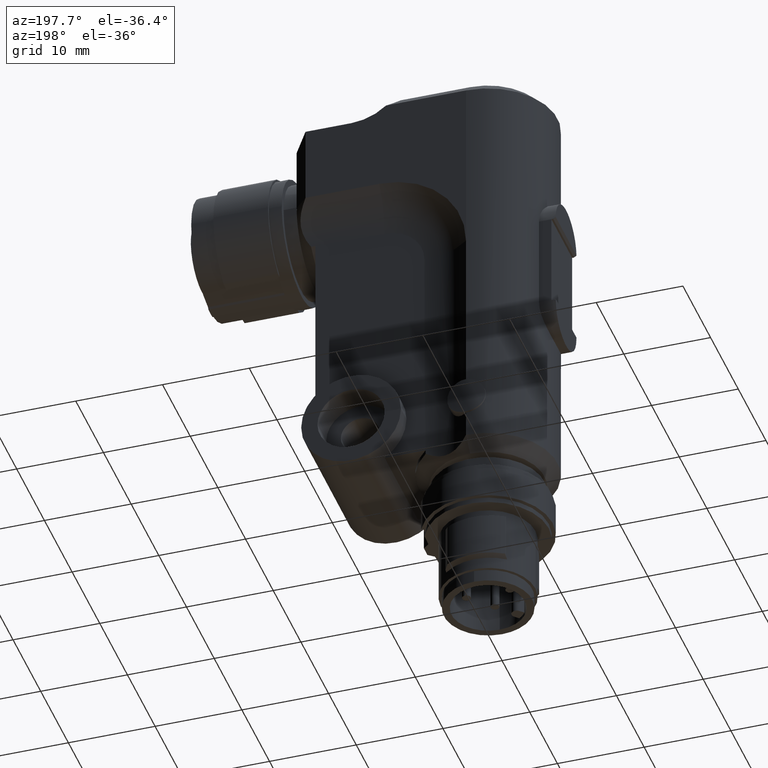
[diagram: clean part render]
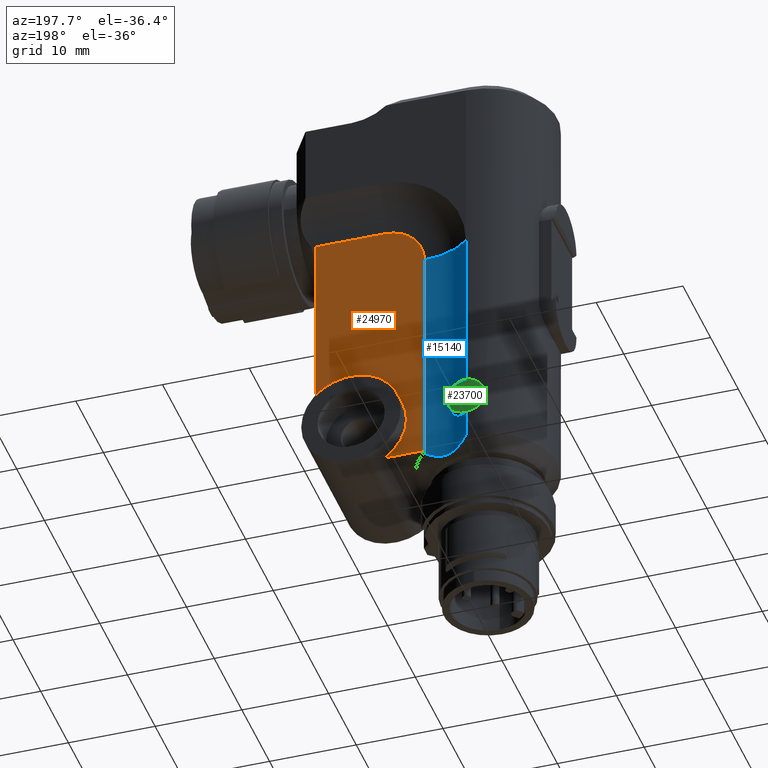
[diagram: same view with three faces highlighted in distinct colors, each labeled with its STEP entity id]
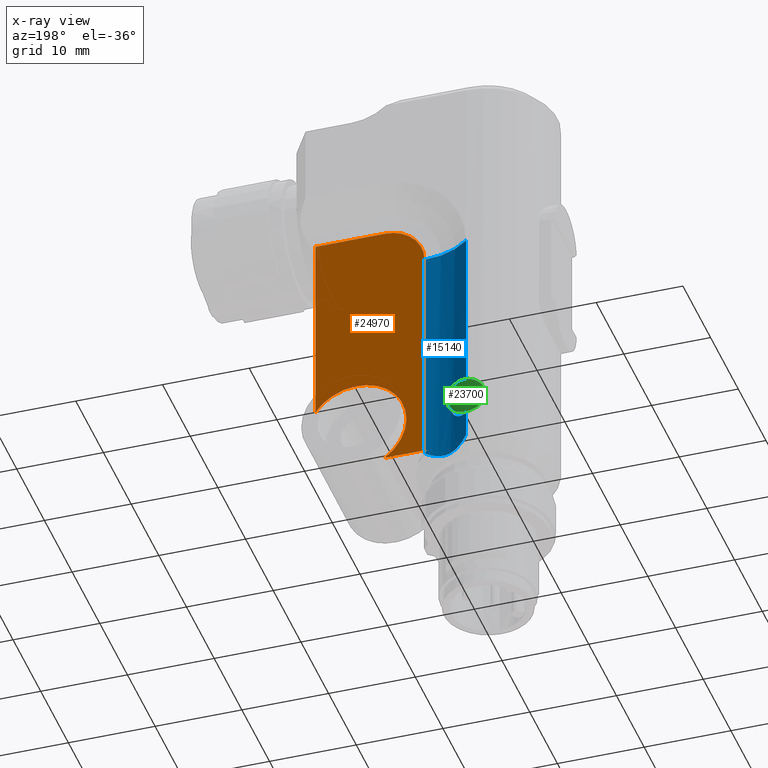
[diagram: x-ray of the same camera — body ghosted, the three highlighted faces saturated]
A machine part, auxiliary view with three faces highlighted in distinct colors.
The next image is the same camera in x-ray (body ghosted, the three faces saturated) — at least one of them is partly hidden behind the body in this view.
Their STEP definitions:

[orange] entity #24970 — the highlighted planar face has unit normal (0, -1, 0).
#10450=CARTESIAN_POINT('',(-6.001,7.49999999999997,6.75000000000001));
#10460=VERTEX_POINT('',#10450);
#10490=CARTESIAN_POINT('',(-6.001,13.25,6.75000000000001));
#10500=DIRECTION('',(1.,0.,0.));
#10510=DIRECTION('',(0.,1.,0.));
#10520=AXIS2_PLACEMENT_3D('',#10490,#10500,#10510);
#10530=CIRCLE('',#10520,5.75000000000003);
#10540=CARTESIAN_POINT('',(-6.001,10.009629650796,2.));
#10550=VERTEX_POINT('',#10540);
#10560=EDGE_CURVE('',#10460,#10550,#10530,.T.);
#11450=CARTESIAN_POINT('',(-6.001,18.,32.582010224373));
#11460=VERTEX_POINT('',#11450);
#11490=CARTESIAN_POINT('',(-6.001,18.,0.));
#11500=DIRECTION('',(0.,-1.88064205402298E-31,-1.));
#11510=VECTOR('',#11500,1.);
#11520=LINE('',#11490,#11510);
#11530=CARTESIAN_POINT('',(-6.001,18.,9.99037034920399));
#11540=VERTEX_POINT('',#11530);
#11550=EDGE_CURVE('',#11460,#11540,#11520,.T.);
#14920=CARTESIAN_POINT('',(-6.001,5.41798977562688,2.));
#14930=VERTEX_POINT('',#14920);
#14960=CARTESIAN_POINT('',(-6.001,5.41798977562688,0.));
#14970=DIRECTION('',(0.,0.,-1.));
#14980=VECTOR('',#14970,1.);
#14990=LINE('',#14960,#14980);
#15000=CARTESIAN_POINT('',(-6.001,5.41798977562688,28.));
#15010=VERTEX_POINT('',#15000);
#15020=EDGE_CURVE('',#15010,#14930,#14990,.T.);
#18250=CARTESIAN_POINT('',(-6.001,0.,2.));
#18260=DIRECTION('',(0.,-1.,0.));
#18270=VECTOR('',#18260,1.);
#18280=LINE('',#18250,#18270);
#18290=EDGE_CURVE('',#10550,#14930,#18280,.T.);
#24690=CARTESIAN_POINT('',(-6.001,15.4615034935439,27.3375668471251));
#24700=DIRECTION('',(1.,0.,0.));
#24710=DIRECTION('',(0.,-1.,0.));
#24720=AXIS2_PLACEMENT_3D('',#24690,#24700,#24710);
#24730=PLANE('',#24720);
#24740=CARTESIAN_POINT('',(-6.001,10.,28.));
#24750=DIRECTION('',(1.,-4.93038065763133E-31,-2.52970265222012E-16));
#24760=DIRECTION('',(-6.8918143462851E-31,-1.,-7.75361359933893E-16));
#24770=AXIS2_PLACEMENT_3D('',#24740,#24750,#24760);
#24780=CIRCLE('',#24770,4.58201022437255);
#24790=CARTESIAN_POINT('',(-6.001,9.99979126227064,32.5820102196179));
#24800=VERTEX_POINT('',#24790);
#24810=EDGE_CURVE('',#24800,#15010,#24780,.T.);
#24820=ORIENTED_EDGE('',*,*,#24810,.F.);
#24830=ORIENTED_EDGE('',*,*,#15020,.F.);
#24840=ORIENTED_EDGE('',*,*,#18290,.T.);
#24850=ORIENTED_EDGE('',*,*,#10560,.T.);
#24860=EDGE_CURVE('',#11540,#10460,#10530,.T.);
#24870=ORIENTED_EDGE('',*,*,#24860,.T.);
#24880=ORIENTED_EDGE('',*,*,#11550,.T.);
#24890=CARTESIAN_POINT('',(-6.001,20.,32.582010224373));
#24900=DIRECTION('',(0.,1.,0.));
#24910=VECTOR('',#24900,1.);
#24920=LINE('',#24890,#24910);
#24930=EDGE_CURVE('',#24800,#11460,#24920,.T.);
#24940=ORIENTED_EDGE('',*,*,#24930,.T.);
#24950=EDGE_LOOP('',(#24940,#24880,#24870,#24850,#24840,#24830,#24820));
#24960=FACE_OUTER_BOUND('',#24950,.T.);
#24970=ADVANCED_FACE('',(#24960),#24730,.F.);

[blue] entity #15140 — the highlighted cylindrical surface (partial cylindrical patch) has radius 8 mm, axis along (0, 0, -1).
#7190=CARTESIAN_POINT('',(-8.,8.08514479691888E-15,1.5));
#7200=VERTEX_POINT('',#7190);
#7230=CARTESIAN_POINT('',(-8.,5.32907051820075E-15,0.));
#7240=DIRECTION('',(0.,0.,-1.));
#7250=VECTOR('',#7240,1.);
#7260=LINE('',#7230,#7250);
#7270=CARTESIAN_POINT('',(-8.,2.30290563376665E-14,4.55));
#7280=VERTEX_POINT('',#7270);
#7290=EDGE_CURVE('',#7280,#7200,#7260,.T.);
#9320=CARTESIAN_POINT('',(-8.,5.60128364936802E-15,8.95000000000001));
#9330=VERTEX_POINT('',#9320);
#9360=CARTESIAN_POINT('',(-8.,4.56777472988637E-15,28.0000000000002));
#9370=VERTEX_POINT('',#9360);
#9380=EDGE_CURVE('',#9370,#9330,#7260,.T.);
#11740=CARTESIAN_POINT('',(-14.,5.29150262212919,0.));
#11750=DIRECTION('',(0.,0.,-1.));
#11760=DIRECTION('',(-1.,0.,0.));
#11770=AXIS2_PLACEMENT_3D('',#11740,#11750,#11760);
#11780=CYLINDRICAL_SURFACE('',#11770,8.);
#11790=CARTESIAN_POINT('',(-7.99999999999999,-288.297717083381,
8.95000000000001));
#11800=CARTESIAN_POINT('',(-7.99999999999999,-286.479384099412,
8.95000000000001));
#11810=CARTESIAN_POINT('',(-7.99999999999999,-284.661051115443,
8.95000000000001));
#11820=CARTESIAN_POINT('',(-7.99999999999999,-188.561812087649,
8.95000000000001));
#11830=CARTESIAN_POINT('',(-7.99999999999999,-94.2809060438244,
8.95000000000001));
#11840=CARTESIAN_POINT('',(-7.99999999999999,0.277683059985009,
8.95000000000001));
#11850=CARTESIAN_POINT('',(-7.99999999999999,0.572961063435002,
8.89422762836984));
#11860=CARTESIAN_POINT('',(-7.99999999999999,1.1146110937259,
8.66928073440923));
#11870=CARTESIAN_POINT('',(-7.99999999999999,1.36109028303667,
8.50017955418415));
#11880=CARTESIAN_POINT('',(-7.99999999999999,1.75021595875995,
8.11105387846088));
#11890=CARTESIAN_POINT('',(-7.99999999999999,1.9192888184719,
7.86458972527087));
#11900=CARTESIAN_POINT('',(-7.99999999999999,2.1442149628536,
7.32299346353924));
#11910=CARTESIAN_POINT('',(-7.99999999999999,2.19999999999999,
7.02773502201409));
#11920=CARTESIAN_POINT('',(-7.99999999999999,2.19999999999999,
6.47226497798593));
#11930=CARTESIAN_POINT('',(-7.99999999999999,2.1442149628536,
6.17700653646077));
#11940=CARTESIAN_POINT('',(-7.99999999999999,1.9192888184719,
5.63541027472915));
#11950=CARTESIAN_POINT('',(-7.99999999999999,1.75021595875995,
5.38894612153914));
#11960=CARTESIAN_POINT('',(-7.99999999999999,1.36109028303667,
4.99982044581586));
#11970=CARTESIAN_POINT('',(-7.99999999999999,1.1146110937259,
4.83071926559079));
#11980=CARTESIAN_POINT('',(-7.99999999999999,0.572961063435002,
4.60577237163017));
#11990=CARTESIAN_POINT('',(-7.99999999999999,0.277683059985009,4.55));
#12000=CARTESIAN_POINT('',(-7.99999999999999,-94.2809060438244,4.55));
#12010=CARTESIAN_POINT('',(-8.,-188.561812087649,4.55));
#12020=CARTESIAN_POINT('',(-8.,-284.661051115443,4.55));
#12030=CARTESIAN_POINT('',(-8.,-286.479384099412,4.55));
#12040=CARTESIAN_POINT('',(-8.,-288.297717083381,4.55));
#12050=B_SPLINE_CURVE_WITH_KNOTS('',3,(#11790,#11800,#11810,#11820,
#11830,#11840,#11850,#11860,#11870,#11880,#11890,#11900,#11910,#11920,
#11930,#11940,#11950,#11960,#11970,#11980,#11990,#12000,#12010,#12020,
#12030,#12040),.UNSPECIFIED.,.F.,.F.,(4,2,2,2,2,2,2,2,2,2,2,2,4),(
-43.2553612055216,-42.4369088347306,0.,0.124988305649672,
0.249976611299327,0.374988305649668,0.499999999999993,0.625011694350334,
0.750023388700659,0.87501169435033,1.,43.4369088347325,44.2553612055235)
,.UNSPECIFIED.);
#12060=DIRECTION('',(1.,-3.0839528461811E-17,-8.91609571378369E-16));
#12070=VECTOR('',#12060,1.);
#12080=SURFACE_OF_LINEAR_EXTRUSION('',#12050,#12070);
#12090=CARTESIAN_POINT('',(-8.,2.25375273998907E-14,4.55));
#12100=CARTESIAN_POINT('',(-7.96570267655543,0.0388895093440816,4.55));
#12110=CARTESIAN_POINT('',(-7.93178182886096,0.0781148522390226,
4.55109268327636));
#12120=CARTESIAN_POINT('',(-7.89827741961416,0.117627715252378,
4.55328649431283));
#12130=CARTESIAN_POINT('',(-7.86477100793111,0.157142939805336,
4.55548043646538));
#12140=CARTESIAN_POINT('',(-7.8316822941319,0.196944101056824,
4.55877531861512));
#12150=CARTESIAN_POINT('',(-7.79903614906739,0.236994998292122,
4.56319603671458));
#12160=CARTESIAN_POINT('',(-7.76639256630321,0.27704275204978,
4.56761640784482));
#12170=CARTESIAN_POINT('',(-7.73420086808112,0.31732864025757,
4.57316102986461));
#12180=CARTESIAN_POINT('',(-7.70248033262066,0.357817788359356,
4.57987140941481));
#12190=CARTESIAN_POINT('',(-7.67075830736398,0.39830883808667,
4.58658210412671));
#12200=CARTESIAN_POINT('',(-7.63953784344485,0.43896419058889,
4.59445173705619));
#12210=CARTESIAN_POINT('',(-7.60882131702823,0.479763327203773,
4.60354013100326));
#12220=CARTESIAN_POINT('',(-7.57809767997573,0.52057190850001,
4.61263062884252));
#12230=CARTESIAN_POINT('',(-7.54785951007598,0.561550458075761,
4.6229478289965));
#12240=CARTESIAN_POINT('',(-7.51817882534997,0.602580116919865,
4.63455127394426));
#12250=CARTESIAN_POINT('',(-7.4884981487231,0.64360976456797,
4.64615471572573));
#12260=CARTESIAN_POINT('',(-7.45937475541909,0.684690788193714,
4.6590443019348));
#12270=CARTESIAN_POINT('',(-7.4308735178539,0.725697407102289,
4.67328711491379));
#12280=CARTESIAN_POINT('',(-7.40237219954843,0.766704142177274,
4.68752996824081));
#12290=CARTESIAN_POINT('',(-7.37449315333942,0.807636285381603,
4.70312608321535));
#12300=CARTESIAN_POINT('',(-7.34729421259249,0.848361198969832,
4.72015221463115));
#12310=CARTESIAN_POINT('',(-7.32008537547965,0.889100930364755,
4.73718454102447));
#12320=CARTESIAN_POINT('',(-7.29355176137925,0.92963952135484,
4.75564222733577));
#12330=CARTESIAN_POINT('',(-7.26765816133198,0.969978195802697,
4.7755543436408));
#12340=CARTESIAN_POINT('',(-7.24175228894155,1.01033598887657,
4.79547589734828));
#12350=CARTESIAN_POINT('',(-7.21645393963974,1.05054742857359,
4.81688346495379));
#12360=CARTESIAN_POINT('',(-7.19183366620314,1.09044666304521,
4.83975015322497));
#12370=CARTESIAN_POINT('',(-7.16721343361652,1.130345831316,
4.86261680355573));
#12380=CARTESIAN_POINT('',(-7.14327158761174,1.16993216915795,
4.88694184207013));
#12390=CARTESIAN_POINT('',(-7.12006787253349,1.20903597542477,
4.91269123459551));
#12400=CARTESIAN_POINT('',(-7.09686417736806,1.2481397481337,
4.93844060502342));
#12410=CARTESIAN_POINT('',(-7.07439856876529,1.28676092842887,
4.96561374135676));
#12420=CARTESIAN_POINT('',(-7.05272138464216,1.32472561294509,
4.99417612445443));
#12430=CARTESIAN_POINT('',(-7.03104423908629,1.36269022991589,
5.02273845673493));
#12440=CARTESIAN_POINT('',(-7.01015503797747,1.39999907832274,
5.05268979078422));
#12450=CARTESIAN_POINT('',(-6.9900980730455,1.43647020015405,
5.08400240017153));
#12460=CARTESIAN_POINT('',(-6.97004121869337,1.47294112090952,
5.11531483692337));
#12470=CARTESIAN_POINT('',(-6.95081554963252,1.50857617678984,
5.14798898249693));
#12480=CARTESIAN_POINT('',(-6.9324650961073,1.54317627797742,
5.18201106978745));
#12490=CARTESIAN_POINT('',(-6.92329184017325,1.56047261253949,
5.19901845947937));
#12500=CARTESIAN_POINT('',(-6.914332050765,1.57751973435806,
5.21637738163294));
#12510=CARTESIAN_POINT('',(-6.90557345046783,1.59432641138482,
5.23409626275953));
#12520=CARTESIAN_POINT('',(-6.89681601335299,1.61113085640771,
5.25181279073735));
#12530=CARTESIAN_POINT('',(-6.88826447606312,1.62768592184757,
5.269878667619));
#12540=CARTESIAN_POINT('',(-6.87991968973492,1.6439751890068,
5.28827255196541));
#12550=CARTESIAN_POINT('',(-6.87157490321043,1.6602644565492,
5.30666643674449));
#12560=CARTESIAN_POINT('',(-6.8634368654282,1.67628792590976,
5.3253883423894));
#12570=CARTESIAN_POINT('',(-6.85550635556242,1.69202897108083,
5.34441707591838));
#12580=CARTESIAN_POINT('',(-6.8475744496094,1.70777278730604,
5.36344915926627));
#12590=CARTESIAN_POINT('',(-6.83985782647782,1.72321849950369,
5.38276758619952));
#12600=CARTESIAN_POINT('',(-6.83232680135606,1.73841088148078,
5.40243216553684));
#12610=CARTESIAN_POINT('',(-6.81726716138723,1.76879078317341,
5.44175503064096));
#12620=CARTESIAN_POINT('',(-6.80298241351808,1.79809355425462,
5.48238656424065));
#12630=CARTESIAN_POINT('',(-6.78949801238218,1.82615111231675,
5.52417962421982));
#12640=CARTESIAN_POINT('',(-6.76105765167009,1.88532816170478,
5.61232663861743));
#12650=CARTESIAN_POINT('',(-6.73617947728693,1.93896304704065,
5.70563874145566));
#12660=CARTESIAN_POINT('',(-6.71506642905164,1.98548645960525,
5.80271926467771));
#12670=CARTESIAN_POINT('',(-6.70978820231418,1.99711723491441,
5.826989233071));
#12680=CARTESIAN_POINT('',(-6.70474524285132,2.00830357575111,
5.85149455129776));
#12690=CARTESIAN_POINT('',(-6.69994074862329,2.01902115900796,
5.87621330040139));
#12700=CARTESIAN_POINT('',(-6.69513610304799,2.02973907988142,
5.90093282817499));
#12710=CARTESIAN_POINT('',(-6.69057338888414,2.03998033123911,
5.92585425940167));
#12720=CARTESIAN_POINT('',(-6.68623564685021,2.04976682373383,
5.95103492196161));
#12730=CARTESIAN_POINT('',(-6.67756222042097,2.06933516643135,
6.00138430245611));
#12740=CARTESIAN_POINT('',(-6.66980479259156,2.08704703618725,
6.05265465456733));
#12750=CARTESIAN_POINT('',(-6.66293138523463,2.1028627644116,
6.10456377405981));
#12760=CARTESIAN_POINT('',(-6.65606120692909,2.1186710625803,
6.15644850721725));
#12770=CARTESIAN_POINT('',(-6.65005884882605,2.13262041077172,
6.20908029798254));
#12780=CARTESIAN_POINT('',(-6.64490379480156,2.14466932302389,
6.26226114195038));
#12790=CARTESIAN_POINT('',(-6.63974916670224,2.15671723976079,
6.3154375919662));
#12800=CARTESIAN_POINT('',(-6.63544382058718,2.16686005954307,
6.36914508993118));
#12810=CARTESIAN_POINT('',(-6.63198434310159,2.17503903663659,
6.4231338602436));
#12820=CARTESIAN_POINT('',(-6.63025449873327,2.17912877490566,
6.45012989379672));
#12830=CARTESIAN_POINT('',(-6.62873688064211,2.18272611412272,
6.47718086058878));
#12840=CARTESIAN_POINT('',(-6.62742892534272,2.18583107653285,
6.50433770783071));
#12850=CARTESIAN_POINT('',(-6.62612120570052,2.18893547951503,
6.53148966216334));
#12860=CARTESIAN_POINT('',(-6.62502468919201,2.19154385686564,
6.55872289871023));
#12870=CARTESIAN_POINT('',(-6.62414324714482,2.193642528232,
6.58600400073679));
#12880=CARTESIAN_POINT('',(-6.62238037870886,2.19783983368276,
6.64056572015329));
#12890=CARTESIAN_POINT('',(-6.62147633077129,2.19999999999999,
6.69532056166732));
#12900=CARTESIAN_POINT('',(-6.62147633077129,2.19999999999999,
6.75000000000001));
#12910=CARTESIAN_POINT('',(-6.62147633077129,2.19999999999999,
6.80467943833271));
#12920=CARTESIAN_POINT('',(-6.62238037870885,2.19783983368276,
6.85943427984672));
#12930=CARTESIAN_POINT('',(-6.62414324714482,2.193642528232,
6.91399599926322));
#12940=CARTESIAN_POINT('',(-6.62502468919201,2.19154385686564,
6.94127710128979));
#12950=CARTESIAN_POINT('',(-6.62612120570052,2.18893547951503,
6.96851033783668));
#12960=CARTESIAN_POINT('',(-6.62742892534272,2.18583107653285,
6.99566229216931));
#12970=CARTESIAN_POINT('',(-6.62873688064212,2.18272611412272,
7.02281913941124));
#12980=CARTESIAN_POINT('',(-6.63025449873327,2.17912877490566,
7.04987010620329));
#12990=CARTESIAN_POINT('',(-6.63198434310159,2.17503903663659,
7.07686613975642));
#13000=CARTESIAN_POINT('',(-6.63544382058677,2.16686005954403,
7.13085491006249));
#13010=CARTESIAN_POINT('',(-6.63974916670163,2.15671723976221,
7.18456240802755));
#13020=CARTESIAN_POINT('',(-6.64490379480156,2.14466932302389,
7.23773885804964));
#13030=CARTESIAN_POINT('',(-6.65005884882605,2.13262041077172,
7.29091970201748));
#13040=CARTESIAN_POINT('',(-6.65606120692909,2.11867106258029,
7.34355149278278));
#13050=CARTESIAN_POINT('',(-6.66293138523463,2.1028627644116,
7.39543622594021));
#13060=CARTESIAN_POINT('',(-6.66980479259156,2.08704703618724,
7.44734534543268));
#13070=CARTESIAN_POINT('',(-6.67756222042098,2.06933516643134,
7.49861569754391));
#13080=CARTESIAN_POINT('',(-6.68623564685021,2.04976682373383,
7.54896507803841));
#13090=CARTESIAN_POINT('',(-6.69057338888383,2.0399803312398,
7.57414574059657));
#13100=CARTESIAN_POINT('',(-6.69513610304765,2.02973907988218,
7.59906717182328));
#13110=CARTESIAN_POINT('',(-6.69994074862329,2.01902115900796,
7.62378669959863));
#13120=CARTESIAN_POINT('',(-6.70474524285132,2.0083035757511,
7.64850544870226));
#13130=CARTESIAN_POINT('',(-6.70978820231419,1.9971172349144,
7.67301076692901));
#13140=CARTESIAN_POINT('',(-6.71506642905164,1.98548645960524,
7.69728073532231));
#13150=CARTESIAN_POINT('',(-6.73617947728693,1.93896304704065,
7.79436125854436));
#13160=CARTESIAN_POINT('',(-6.7610576516701,1.88532816170477,
7.88767336138259));
#13170=CARTESIAN_POINT('',(-6.78949801238218,1.82615111231674,
7.9758203757802));
#13180=CARTESIAN_POINT('',(-6.80298241351681,1.79809355425725,
8.01761343575544));
#13190=CARTESIAN_POINT('',(-6.81726716138581,1.76879078317627,
8.05824496935536));
#13200=CARTESIAN_POINT('',(-6.83232680135606,1.73841088148077,
8.09756783446317));
#13210=CARTESIAN_POINT('',(-6.83985782647828,1.72321849950276,
8.11723241380169));
#13220=CARTESIAN_POINT('',(-6.84757444960989,1.70777278730507,
8.13655084073491));
#13230=CARTESIAN_POINT('',(-6.85550635556242,1.69202897108082,
8.15558292408164));
#13240=CARTESIAN_POINT('',(-6.8634368654282,1.67628792590975,
8.17461165761062));
#13250=CARTESIAN_POINT('',(-6.87157490321044,1.66026445654919,
8.19333356325553));
#13260=CARTESIAN_POINT('',(-6.87991968973493,1.64397518900679,
8.21172744803461));
#13270=CARTESIAN_POINT('',(-6.88826447606312,1.62768592184756,
8.23012133238101));
#13280=CARTESIAN_POINT('',(-6.896816013353,1.61113085640769,
8.24818720926267));
#13290=CARTESIAN_POINT('',(-6.90557345046784,1.59432641138481,
8.26590373724049));
#13300=CARTESIAN_POINT('',(-6.91433205076501,1.57751973435805,
8.28362261836707));
#13310=CARTESIAN_POINT('',(-6.92329184017326,1.56047261253948,
8.30098154052065));
#13320=CARTESIAN_POINT('',(-6.93246509610731,1.54317627797741,
8.31798893021256));
#13330=CARTESIAN_POINT('',(-6.95081554963252,1.50857617678983,
8.35201101750309));
#13340=CARTESIAN_POINT('',(-6.97004121869337,1.47294112090951,
8.38468516307665));
#13350=CARTESIAN_POINT('',(-6.9900980730455,1.43647020015404,
8.41599759982849));
#13360=CARTESIAN_POINT('',(-7.01015503797748,1.39999907832273,
8.4473102092158));
#13370=CARTESIAN_POINT('',(-7.0310442390863,1.36269022991588,
8.47726154326508));
#13380=CARTESIAN_POINT('',(-7.05272138464216,1.32472561294507,
8.50582387554558));
#13390=CARTESIAN_POINT('',(-7.0743985687653,1.28676092842886,
8.53438625864326));
#13400=CARTESIAN_POINT('',(-7.09686417736807,1.24813974813369,
8.5615593949766));
#13410=CARTESIAN_POINT('',(-7.12006787253349,1.20903597542476,
8.58730876540451));
#13420=CARTESIAN_POINT('',(-7.14327158761175,1.16993216915794,
8.61305815792989));
#13430=CARTESIAN_POINT('',(-7.16721343361653,1.13034583131599,
8.63738319644428));
#13440=CARTESIAN_POINT('',(-7.19183366620315,1.0904466630452,
8.66024984677504));
#13450=CARTESIAN_POINT('',(-7.21645393963975,1.05054742857357,
8.68311653504623));
#13460=CARTESIAN_POINT('',(-7.24175228894155,1.01033598887656,
8.70452410265174));
#13470=CARTESIAN_POINT('',(-7.26765816133199,0.969978195802689,
8.72444565635921));
#13480=CARTESIAN_POINT('',(-7.29355176138901,0.929639521339645,
8.74435777267174));
#13490=CARTESIAN_POINT('',(-7.32008537548991,0.889100930349393,
8.76281545898197));
#13500=CARTESIAN_POINT('',(-7.34729421259249,0.848361198969823,
8.77984778536886));
#13510=CARTESIAN_POINT('',(-7.37449315333942,0.807636285381591,
8.79687391678467));
#13520=CARTESIAN_POINT('',(-7.40237219954843,0.766704142177264,
8.8124700317592));
#13530=CARTESIAN_POINT('',(-7.43087351785391,0.725697407102278,
8.82671288508622));
#13540=CARTESIAN_POINT('',(-7.4593747554191,0.684690788193706,
8.84095569806521));
#13550=CARTESIAN_POINT('',(-7.48849814872311,0.643609764567952,
8.85384528427428));
#13560=CARTESIAN_POINT('',(-7.51817882534998,0.602580116919855,
8.86544872605574));
#13570=CARTESIAN_POINT('',(-7.54785951007599,0.561550458075745,
8.87705217100351));
#13580=CARTESIAN_POINT('',(-7.57809767997574,0.520571908500001,
8.88736937115748));
#13590=CARTESIAN_POINT('',(-7.60882131702824,0.479763327203762,
8.89645986899675));
#13600=CARTESIAN_POINT('',(-7.63953784344486,0.438964190588883,
8.90554826294382));
#13610=CARTESIAN_POINT('',(-7.67075830736399,0.398308838086653,
8.91341789587329));
#13620=CARTESIAN_POINT('',(-7.70248033262067,0.357817788359346,
8.9201285905852));
#13630=CARTESIAN_POINT('',(-7.73420086808113,0.317328640257564,
8.92683897013539));
#13640=CARTESIAN_POINT('',(-7.76639256630322,0.277042752049768,
8.93238359215518));
#13650=CARTESIAN_POINT('',(-7.7990361490674,0.23699499829211,
8.93680396328542));
#13660=CARTESIAN_POINT('',(-7.83168229413191,0.196944101056812,
8.94122468138488));
#13670=CARTESIAN_POINT('',(-7.86477100793113,0.157142939805312,
8.94451956353463));
#13680=CARTESIAN_POINT('',(-7.89827741961417,0.117627715252363,
8.94671350568718));
#13690=CARTESIAN_POINT('',(-7.93178182886097,0.0781148522390084,
8.94890731672365));
#13700=CARTESIAN_POINT('',(-7.96570267655544,0.0388895093440661,
8.95000000000001));
#13710=CARTESIAN_POINT('',(-8.,8.2156503822269E-15,8.95000000000001));
#13720=B_SPLINE_CURVE_WITH_KNOTS('',3,(#12090,#12100,#12110,#12120,
#12130,#12140,#12150,#12160,#12170,#12180,#12190,#12200,#12210,#12220,
#12230,#12240,#12250,#12260,#12270,#12280,#12290,#12300,#12310,#12320,
#12330,#12340,#12350,#12360,#12370,#12380,#12390,#12400,#12410,#12420,
#12430,#12440,#12450,#12460,#12470,#12480,#12490,#12500,#12510,#12520,
#12530,#12540,#12550,#12560,#12570,#12580,#12590,#12600,#12610,#12620,
#12630,#12640,#12650,#12660,#12670,#12680,#12690,#12700,#12710,#12720,
#12730,#12740,#12750,#12760,#12770,#12780,#12790,#12800,#12810,#12820,
#12830,#12840,#12850,#12860,#12870,#12880,#12890,#12900,#12910,#12920,
#12930,#12940,#12950,#12960,#12970,#12980,#12990,#13000,#13010,#13020,
#13030,#13040,#13050,#13060,#13070,#13080,#13090,#13100,#13110,#13120,
#13130,#13140,#13150,#13160,#13170,#13180,#13190,#13200,#13210,#13220,
#13230,#13240,#13250,#13260,#13270,#13280,#13290,#13300,#13310,#13320,
#13330,#13340,#13350,#13360,#13370,#13380,#13390,#13400,#13410,#13420,
#13430,#13440,#13450,#13460,#13470,#13480,#13490,#13500,#13510,#13520,
#13530,#13540,#13550,#13560,#13570,#13580,#13590,#13600,#13610,#13620,
#13630,#13640,#13650,#13660,#13670,#13680,#13690,#13700,#13710),
.UNSPECIFIED.,.F.,.F.,(4,3,3,3,3,3,3,3,3,3,3,3,3,3,3,3,3,3,3,3,3,3,3,3,3
,3,3,3,3,3,3,3,3,3,3,3,3,3,3,3,3,3,3,3,3,3,3,3,3,3,3,3,3,3,4),(0.,
0.155560075269583,0.311123780085613,0.466699993431788,0.622289203733837,
0.778068868336787,0.933911159797859,1.08958833375539,1.24518275026743,
1.40135885201395,1.55801888635527,1.71476099521893,1.87124293491366,
2.02720361740525,2.10500498103816,2.18284364642119,2.26067706383786,
2.33849076070351,2.49458547783768,2.8243323858957,2.90652531730662,
2.98857635897961,3.15273544417975,3.31691616019279,3.48118164430166,
3.56323141159444,3.64534173553406,3.80952998533529,3.97371823513652,
4.05582855907614,4.13787832636891,4.30214381047779,4.46632452649084,
4.63048361169098,4.71253465336397,4.79472758477489,5.12447449283291,
5.28056920996708,5.35838290683273,5.43621632424941,5.51405498963245,
5.59185635326536,5.74781703575695,5.90429897545168,6.06104108431534,
6.21770111865667,6.37387722040318,6.52947163691523,6.68514881087276,
6.84099110233382,6.99677076693679,7.15235997723884,7.30793619058501,
7.46349989540104,7.6190599706706),.UNSPECIFIED.);
#13730=SURFACE_CURVE('',#13720,(#11780,#12080),.CURVE_3D.);
#13740=EDGE_CURVE('',#7280,#9330,#13730,.T.);
#13750=ORIENTED_EDGE('',*,*,#13740,.T.);
#13760=ORIENTED_EDGE('',*,*,#7290,.F.);
#13770=CARTESIAN_POINT('',(7.61693287089118E-16,7.105427357601E-15,1.5))
;
#13780=DIRECTION('',(2.52970265222012E-16,0.,1.));
#13790=DIRECTION('',(1.,0.,-2.52970265222012E-16));
#13800=AXIS2_PLACEMENT_3D('',#13770,#13780,#13790);
#13810=CONICAL_SURFACE('',#13800,8.,0.785398163397448);
#13820=CARTESIAN_POINT('',(-8.,5.72739021824194E-15,1.5));
#13830=CARTESIAN_POINT('',(-7.96410206669721,0.0407044303287358,
1.46410206669721));
#13840=CARTESIAN_POINT('',(-7.92839924175299,0.0820225226208609,
1.42870963334482));
#13850=CARTESIAN_POINT('',(-7.89290958233148,0.12396484960915,
1.39388300893792));
#13860=CARTESIAN_POINT('',(-7.8574199214178,0.165907178360932,
1.35905638306671));
#13870=CARTESIAN_POINT('',(-7.82214335488641,0.208473797361093,
1.32479548294923));
#13880=CARTESIAN_POINT('',(-7.78709730604285,0.251677216877538,
1.29116331976651));
#13890=CARTESIAN_POINT('',(-7.75205126328362,0.294880628893448,
1.25753116242265));
#13900=CARTESIAN_POINT('',(-7.71723564973883,0.338720921531129,
1.22452764439301));
#13910=CARTESIAN_POINT('',(-7.6826676061991,0.383212550603892,
1.19221901705102));
#13920=CARTESIAN_POINT('',(-7.64809957885258,0.427704158834798,
1.15991040484383));
#13930=CARTESIAN_POINT('',(-7.61377901458603,0.472847213315825,
1.12829657298626));
#13940=CARTESIAN_POINT('',(-7.57972321579006,0.518657976204203,
1.09744760589153));
#13950=CARTESIAN_POINT('',(-7.54566744591511,0.564468700188939,
1.06659866499452));
#13960=CARTESIAN_POINT('',(-7.5118763162811,0.61094727666974,
1.03651446984425));
#13970=CARTESIAN_POINT('',(-7.47836782959569,0.65811144136523,
1.00726954783389));
#13980=CARTESIAN_POINT('',(-7.44485731579755,0.705278459280541,
0.9780228566373));
#13990=CARTESIAN_POINT('',(-7.41164536772475,0.753107034792666,
0.949628422345238));
#14000=CARTESIAN_POINT('',(-7.3786750100924,0.801730314090409,
0.922103232983273));
#14010=CARTESIAN_POINT('',(-7.34571005091874,0.850345631971193,
0.894582550505923));
#14020=CARTESIAN_POINT('',(-7.31301622512814,0.89971412583298,
0.867956975316604));
#14030=CARTESIAN_POINT('',(-7.28064316357945,0.949815887132247,
0.842337168424302));
#14040=CARTESIAN_POINT('',(-7.24827010448691,0.999917644630298,
0.816717363475771));
#14050=CARTESIAN_POINT('',(-7.21621790608939,1.05075253923477,
0.792103485069121));
#14060=CARTESIAN_POINT('',(-7.18453482592318,1.10229810803037,
0.768603840069305));
#14070=CARTESIAN_POINT('',(-7.1211559648346,1.20540990862833,
0.721595129796793));
#14080=CARTESIAN_POINT('',(-7.05930835544935,1.31127388298865,
0.679083714058225));
#14090=CARTESIAN_POINT('',(-6.99921085342267,1.41994591646509,
0.641792420416362));
#14100=CARTESIAN_POINT('',(-6.9691461035657,1.47431086330542,
0.623136846101685));
#14110=CARTESIAN_POINT('',(-6.939495860216,1.52942294213745,
0.605774380589383));
#14120=CARTESIAN_POINT('',(-6.91033369343176,1.58520640332651,
0.589823065191795));
#14130=CARTESIAN_POINT('',(-6.88117153535106,1.64098984786682,
0.573871754554922));
#14140=CARTESIAN_POINT('',(-6.8524981693361,1.69744343025899,
0.559332205759282));
#14150=CARTESIAN_POINT('',(-6.82438256141844,1.75448207156348,
0.546304328087861));
#14160=CARTESIAN_POINT('',(-6.79626689343016,1.8115208347343,
0.533276422581632));
#14170=CARTESIAN_POINT('',(-6.76870980882053,1.86914303288345,
0.521760725845155));
#14180=CARTESIAN_POINT('',(-6.74177290891049,1.92725835421782,
0.511834761260491));
#14190=CARTESIAN_POINT('',(-6.71484247471478,1.98535972602323,
0.501911179223619));
#14200=CARTESIAN_POINT('',(-6.68849583296876,2.04403208992537,
0.493563512535875));
#14210=CARTESIAN_POINT('',(-6.66279674439707,2.10317259122432,
0.486858765255289));
#14220=CARTESIAN_POINT('',(-6.63709596315496,2.16231698781227,
0.480153576366536));
#14230=CARTESIAN_POINT('',(-6.61205960585843,2.2218890719811,
0.475094558073922));
#14240=CARTESIAN_POINT('',(-6.58770603806595,2.28186838822701,
0.471713862828867));
#14250=CARTESIAN_POINT('',(-6.56335139197452,2.34185036016732,
0.468333017897322));
#14260=CARTESIAN_POINT('',(-6.53970243942642,2.40218410801377,
0.46663443254683));
#14270=CARTESIAN_POINT('',(-6.51678425174998,2.46281351493788,
0.46662955762807));
#14280=CARTESIAN_POINT('',(-6.49386388033894,2.52344869886911,
0.46662468224481));
#14290=CARTESIAN_POINT('',(-6.4716898448202,2.58433874005042,
0.468313817250641));
#14300=CARTESIAN_POINT('',(-6.45027951276266,2.64542617489855,
0.471684548199522));
#14310=CARTESIAN_POINT('',(-6.42886724174378,2.70651914194366,
0.475055584408357));
#14320=CARTESIAN_POINT('',(-6.40823611475259,2.7677596366264,
0.48010535598836));
#14330=CARTESIAN_POINT('',(-6.38838951291377,2.8291083009696,
0.486800007680294));
#14340=CARTESIAN_POINT('',(-6.36854313288212,2.89045627967534,
0.493494584552278));
#14350=CARTESIAN_POINT('',(-6.3494889494157,2.95189119291827,
0.501833248995333));
#14360=CARTESIAN_POINT('',(-6.33125209107613,3.01327842127105,
0.511747277594473));
#14370=CARTESIAN_POINT('',(-6.31301261372562,3.07467446549659,
0.521662729955804));
#14380=CARTESIAN_POINT('',(-6.2955682899759,3.13609766858084,
0.53316567557126));
#14390=CARTESIAN_POINT('',(-6.27893374412793,3.1974310205707,
0.546174429742339));
#14400=CARTESIAN_POINT('',(-6.24564902065462,3.32015536058764,
0.572204162641207));
#14410=CARTESIAN_POINT('',(-6.21567418007353,3.44225765683492,
0.604202798516999));
#14420=CARTESIAN_POINT('',(-6.18883944198332,3.56356433130844,
0.641479145248703));
#14430=CARTESIAN_POINT('',(-6.17541827429885,3.6242348403286,
0.660122595334525));
#14440=CARTESIAN_POINT('',(-6.16277843479283,3.68472628117394,
0.680092130688335));
#14450=CARTESIAN_POINT('',(-6.15090558738149,3.74498495271804,
0.701288207047774));
#14460=CARTESIAN_POINT('',(-6.13903275017531,3.80524357246757,
0.722484265188396));
#14470=CARTESIAN_POINT('',(-6.12792697853662,3.86526900765355,
0.744906613799509));
#14480=CARTESIAN_POINT('',(-6.11757068222246,3.92500781780645,
0.768449451005999));
#14490=CARTESIAN_POINT('',(-6.10721438787207,3.98474661663162,
0.791992283748277));
#14500=CARTESIAN_POINT('',(-6.09760760529449,4.04419850275096,
0.81665538518572));
#14510=CARTESIAN_POINT('',(-6.08872949336202,4.10331115153196,
0.842328598586623));
#14520=CARTESIAN_POINT('',(-6.07985137922011,4.16242381502395,
0.868001818376653));
#14530=CARTESIAN_POINT('',(-6.07170194880319,4.22119705638548,
0.894684971160126));
#14540=CARTESIAN_POINT('',(-6.06425727291068,4.27958001172416,
0.922265243764799));
#14550=CARTESIAN_POINT('',(-6.0568125931952,4.33796299704353,
0.949845530532436));
#14560=CARTESIAN_POINT('',(-6.0500726682241,4.39595558733358,
0.978322800150361));
#14570=CARTESIAN_POINT('',(-6.04401070510655,4.45350838614571,
1.00758298981162));
#14580=CARTESIAN_POINT('',(-6.0379505482363,4.51104403629074,
1.03683446098721));
#14590=CARTESIAN_POINT('',(-6.03256101860198,4.56819725430387,
1.06689599000467));
#14600=CARTESIAN_POINT('',(-6.02780845434912,4.62504785288182,
1.09773271468333));
#14610=CARTESIAN_POINT('',(-6.0230564031192,4.68189231463345,
1.12856611064377));
#14620=CARTESIAN_POINT('',(-6.01894399012063,4.73840740074541,
1.16016086913247));
#14630=CARTESIAN_POINT('',(-6.01544719175321,4.7945957371716,
1.19244780285675));
#14640=CARTESIAN_POINT('',(-6.01195039115163,4.85078410949739,
1.22473475720965));
#14650=CARTESIAN_POINT('',(-6.00906921148045,4.90664589788557,
1.25771400540506));
#14660=CARTESIAN_POINT('',(-6.00678110214714,4.96218263942553,
1.29132053994239));
#14670=CARTESIAN_POINT('',(-6.00449299210999,5.01771939804926,
1.32492708481748));
#14680=CARTESIAN_POINT('',(-6.00279796515409,5.07293123948109,
1.35916102175182));
#14690=CARTESIAN_POINT('',(-6.00167471304066,5.12781815742127,
1.39396088264509));
#14700=CARTESIAN_POINT('',(-6.00055146086099,5.18270507859823,
1.42876074559057));
#14710=CARTESIAN_POINT('',(-6.,5.23726717448766,1.46412662332406));
#14720=CARTESIAN_POINT('',(-6.,5.29150262212919,1.5));
#14730=B_SPLINE_CURVE_WITH_KNOTS('',3,(#13820,#13830,#13840,#13850,
#13860,#13870,#13880,#13890,#13900,#13910,#13920,#13930,#13940,#13950,
#13960,#13970,#13980,#13990,#14000,#14010,#14020,#14030,#14040,#14050,
#14060,#14070,#14080,#14090,#14100,#14110,#14120,#14130,#14140,#14150,
#14160,#14170,#14180,#14190,#14200,#14210,#14220,#14230,#14240,#14250,
#14260,#14270,#14280,#14290,#14300,#14310,#14320,#14330,#14340,#14350,
#14360,#14370,#14380,#14390,#14400,#14410,#14420,#14430,#14440,#14450,
#14460,#14470,#14480,#14490,#14500,#14510,#14520,#14530,#14540,#14550,
#14560,#14570,#14580,#14590,#14600,#14610,#14620,#14630,#14640,#14650,
#14660,#14670,#14680,#14690,#14700,#14710,#14720),.UNSPECIFIED.,.F.,.F.,
(4,3,3,3,3,3,3,3,3,3,3,3,3,3,3,3,3,3,3,3,3,3,3,3,3,3,3,3,3,3,4),(0.,
0.195188606983974,0.390279432757332,0.58521482896295,0.779965254354914,
0.974530901724284,1.16901063706763,1.36370741116983,1.55846248008233,
1.94760034942322,2.1423273275449,2.33711989622456,2.53173046494902,
2.72619530425316,2.92064411735206,3.11508510544907,3.30952333629801,
3.50396649838287,3.69842833389841,3.89296298348065,4.28204020904119,
4.47681276609432,4.67184131875322,4.86700114885682,5.06210146850888,
5.25689410853825,5.45136465061439,5.64597534096816,5.840754721473,
6.03568712259809,6.23073027581124),.UNSPECIFIED.);
#14740=SURFACE_CURVE('',#14730,(#13810,#11780),.CURVE_3D.);
#14750=CARTESIAN_POINT('',(-6.,5.29150262212919,1.5));
#14760=VERTEX_POINT('',#14750);
#14770=EDGE_CURVE('',#7200,#14760,#14740,.T.);
#14780=ORIENTED_EDGE('',*,*,#14770,.F.);
#14790=CARTESIAN_POINT('',(-6.,5.29150262212919,2.00000000000001));
#14800=DIRECTION('',(2.52970265222012E-16,6.19598451167187E-32,1.));
#14810=VECTOR('',#14800,1.);
#14820=LINE('',#14790,#14810);
#14830=CARTESIAN_POINT('',(-6.,5.29150262212919,2.00000000000001));
#14840=VERTEX_POINT('',#14830);
#14850=EDGE_CURVE('',#14760,#14840,#14820,.T.);
#14860=ORIENTED_EDGE('',*,*,#14850,.F.);
#14870=CARTESIAN_POINT('',(-14.,5.29150262212919,2.00000000000001));
#14880=DIRECTION('',(0.,0.,1.));
#14890=DIRECTION('',(-1.,0.,0.));
#14900=AXIS2_PLACEMENT_3D('',#14870,#14880,#14890);
#14910=CIRCLE('',#14900,8.);
#14920=CARTESIAN_POINT('',(-6.001,5.41798977562688,2.));
#14930=VERTEX_POINT('',#14920);
#14940=EDGE_CURVE('',#14840,#14930,#14910,.T.);
#14950=ORIENTED_EDGE('',*,*,#14940,.F.);
#14960=CARTESIAN_POINT('',(-6.001,5.41798977562688,0.));
#14970=DIRECTION('',(0.,0.,-1.));
#14980=VECTOR('',#14970,1.);
#14990=LINE('',#14960,#14980);
#15000=CARTESIAN_POINT('',(-6.001,5.41798977562688,28.));
#15010=VERTEX_POINT('',#15000);
#15020=EDGE_CURVE('',#15010,#14930,#14990,.T.);
#15030=ORIENTED_EDGE('',*,*,#15020,.T.);
#15040=CARTESIAN_POINT('',(-14.,5.2915026221292,28.));
#15050=DIRECTION('',(2.52970265222012E-16,6.72936758894445E-17,1.));
#15060=DIRECTION('',(-4.76014766725616E-31,-1.,6.72936758894445E-17));
#15070=AXIS2_PLACEMENT_3D('',#15040,#15050,#15060);
#15080=CIRCLE('',#15070,8.);
#15090=EDGE_CURVE('',#9370,#15010,#15080,.T.);
#15100=ORIENTED_EDGE('',*,*,#15090,.T.);
#15110=ORIENTED_EDGE('',*,*,#9380,.F.);
#15120=EDGE_LOOP('',(#15110,#15100,#15030,#14950,#14860,#14780,#13760,
#13750));
#15130=FACE_OUTER_BOUND('',#15120,.T.);
#15140=ADVANCED_FACE('',(#15130),#11780,.F.);

[green] entity #23700 — the highlighted cylindrical surface (partial cylindrical patch) has radius 8.201 mm, axis along (0, -0, 1).
#7310=CARTESIAN_POINT('',(-8.00000000000064,305.134993871815,4.55));
#7320=CARTESIAN_POINT('',(-8.00000000000064,303.423331201174,4.55));
#7330=CARTESIAN_POINT('',(-8.00000000000064,301.711668530533,4.55));
#7340=CARTESIAN_POINT('',(-8.00000000000064,200.000003906595,4.55));
#7350=CARTESIAN_POINT('',(-8.00000000000064,100.000001953297,4.55));
#7360=CARTESIAN_POINT('',(-8.00000000000065,-0.277683059985009,4.55));
#7370=CARTESIAN_POINT('',(-8.00000000000065,-0.572961063435002,
4.60577237163017));
#7380=CARTESIAN_POINT('',(-8.00000000000065,-1.1146110937259,
4.83071926559079));
#7390=CARTESIAN_POINT('',(-8.00000000000065,-1.36109028303667,
4.99982044581586));
#7400=CARTESIAN_POINT('',(-8.00000000000065,-1.75021595875995,
5.38894612153914));
#7410=CARTESIAN_POINT('',(-8.00000000000065,-1.91928881847184,
5.63541027472915));
#7420=CARTESIAN_POINT('',(-8.00000000000065,-2.1442149628536,
6.17700653646077));
#7430=CARTESIAN_POINT('',(-8.00000000000064,-2.19999999999999,
6.47226497798593));
#7440=CARTESIAN_POINT('',(-8.00000000000064,-2.19999999999999,
7.02773502201409));
#7450=CARTESIAN_POINT('',(-8.00000000000064,-2.1442149628536,
7.32299346353924));
#7460=CARTESIAN_POINT('',(-8.00000000000064,-1.91928881847184,
7.86458972527087));
#7470=CARTESIAN_POINT('',(-8.00000000000064,-1.75021595875995,
8.11105387846088));
#7480=CARTESIAN_POINT('',(-8.00000000000064,-1.36109028303667,
8.50017955418415));
#7490=CARTESIAN_POINT('',(-8.00000000000064,-1.1146110937259,
8.66928073440923));
#7500=CARTESIAN_POINT('',(-8.00000000000064,-0.572961063435002,
8.89422762836984));
#7510=CARTESIAN_POINT('',(-8.00000000000064,-0.277683059985009,
8.95000000000001));
#7520=CARTESIAN_POINT('',(-8.00000000000064,100.000001953297,
8.95000000000001));
#7530=CARTESIAN_POINT('',(-8.00000000000064,200.000003906595,
8.95000000000001));
#7540=CARTESIAN_POINT('',(-8.00000000000063,301.711668530533,
8.95000000000001));
#7550=CARTESIAN_POINT('',(-8.00000000000063,303.423331201174,
8.95000000000001));
#7560=CARTESIAN_POINT('',(-8.00000000000063,305.134993871815,
8.95000000000001));
#7570=B_SPLINE_CURVE_WITH_KNOTS('',3,(#7310,#7320,#7330,#7340,#7350,
#7360,#7370,#7380,#7390,#7400,#7410,#7420,#7430,#7440,#7450,#7460,#7470,
#7480,#7490,#7500,#7510,#7520,#7530,#7540,#7550,#7560),.UNSPECIFIED.,.F.
,.F.,(4,2,2,2,2,2,2,2,2,2,2,2,4),(-45.7815778421587,-45.0111389934268,0.
,0.124988305649667,0.249976611299334,0.374988305649667,0.5,
0.625011694350332,0.750023388700666,0.875011694350333,1.,
46.0111389934294,46.7815778421614),.UNSPECIFIED.);
#7580=DIRECTION('',(1.,-3.0839528461811E-17,-8.91609571378369E-16));
#7590=VECTOR('',#7580,1.);
#7600=SURFACE_OF_LINEAR_EXTRUSION('',#7570,#7590);
#11790=CARTESIAN_POINT('',(-7.99999999999999,-288.297717083381,
8.95000000000001));
#11800=CARTESIAN_POINT('',(-7.99999999999999,-286.479384099412,
8.95000000000001));
#11810=CARTESIAN_POINT('',(-7.99999999999999,-284.661051115443,
8.95000000000001));
#11820=CARTESIAN_POINT('',(-7.99999999999999,-188.561812087649,
8.95000000000001));
#11830=CARTESIAN_POINT('',(-7.99999999999999,-94.2809060438244,
8.95000000000001));
#11840=CARTESIAN_POINT('',(-7.99999999999999,0.277683059985009,
8.95000000000001));
#11850=CARTESIAN_POINT('',(-7.99999999999999,0.572961063435002,
8.89422762836984));
#11860=CARTESIAN_POINT('',(-7.99999999999999,1.1146110937259,
8.66928073440923));
#11870=CARTESIAN_POINT('',(-7.99999999999999,1.36109028303667,
8.50017955418415));
#11880=CARTESIAN_POINT('',(-7.99999999999999,1.75021595875995,
8.11105387846088));
#11890=CARTESIAN_POINT('',(-7.99999999999999,1.9192888184719,
7.86458972527087));
#11900=CARTESIAN_POINT('',(-7.99999999999999,2.1442149628536,
7.32299346353924));
#11910=CARTESIAN_POINT('',(-7.99999999999999,2.19999999999999,
7.02773502201409));
#11920=CARTESIAN_POINT('',(-7.99999999999999,2.19999999999999,
6.47226497798593));
#11930=CARTESIAN_POINT('',(-7.99999999999999,2.1442149628536,
6.17700653646077));
#11940=CARTESIAN_POINT('',(-7.99999999999999,1.9192888184719,
5.63541027472915));
#11950=CARTESIAN_POINT('',(-7.99999999999999,1.75021595875995,
5.38894612153914));
#11960=CARTESIAN_POINT('',(-7.99999999999999,1.36109028303667,
4.99982044581586));
#11970=CARTESIAN_POINT('',(-7.99999999999999,1.1146110937259,
4.83071926559079));
#11980=CARTESIAN_POINT('',(-7.99999999999999,0.572961063435002,
4.60577237163017));
#11990=CARTESIAN_POINT('',(-7.99999999999999,0.277683059985009,4.55));
#12000=CARTESIAN_POINT('',(-7.99999999999999,-94.2809060438244,4.55));
#12010=CARTESIAN_POINT('',(-8.,-188.561812087649,4.55));
#12020=CARTESIAN_POINT('',(-8.,-284.661051115443,4.55));
#12030=CARTESIAN_POINT('',(-8.,-286.479384099412,4.55));
#12040=CARTESIAN_POINT('',(-8.,-288.297717083381,4.55));
#12050=B_SPLINE_CURVE_WITH_KNOTS('',3,(#11790,#11800,#11810,#11820,
#11830,#11840,#11850,#11860,#11870,#11880,#11890,#11900,#11910,#11920,
#11930,#11940,#11950,#11960,#11970,#11980,#11990,#12000,#12010,#12020,
#12030,#12040),.UNSPECIFIED.,.F.,.F.,(4,2,2,2,2,2,2,2,2,2,2,2,4),(
-43.2553612055216,-42.4369088347306,0.,0.124988305649672,
0.249976611299327,0.374988305649668,0.499999999999993,0.625011694350334,
0.750023388700659,0.87501169435033,1.,43.4369088347325,44.2553612055235)
,.UNSPECIFIED.);
#12060=DIRECTION('',(1.,-3.0839528461811E-17,-8.91609571378369E-16));
#12070=VECTOR('',#12060,1.);
#12080=SURFACE_OF_LINEAR_EXTRUSION('',#12050,#12070);
#20130=CARTESIAN_POINT('',(1.22044833166677E-13,2.09524963165215E-14,6.3
));
#20140=DIRECTION('',(8.91609571378369E-16,1.60567386648952E-31,1.));
#20150=DIRECTION('',(1.,-3.08395284618109E-17,-8.91609571378369E-16));
#20160=AXIS2_PLACEMENT_3D('',#20130,#20140,#20150);
#20170=CYLINDRICAL_SURFACE('',#20160,8.20100000000012);
#20180=CARTESIAN_POINT('',(-8.201,-2.42937352408104E-14,4.55));
#20190=CARTESIAN_POINT('',(-8.201,-0.0435929381622827,4.55));
#20200=CARTESIAN_POINT('',(-8.20065197846482,-0.0871847895171171,
4.55137258002576));
#20210=CARTESIAN_POINT('',(-8.19995862784445,-0.130688567363351,
4.55405118064142));
#20220=CARTESIAN_POINT('',(-8.19926533063975,-0.174188993682367,
4.55672957489793));
#20230=CARTESIAN_POINT('',(-8.19822641844186,-0.217616905346762,
4.56071550494725));
#20240=CARTESIAN_POINT('',(-8.19684994649795,-0.260867695578726,
4.56596126998666));
#20250=CARTESIAN_POINT('',(-8.195473311658,-0.304123604246075,
4.5712076558265));
#20260=CARTESIAN_POINT('',(-8.19375770586023,-0.347242867538714,
4.57771949105158));
#20270=CARTESIAN_POINT('',(-8.19171614724751,-0.390112244007354,
4.58546454331642));
#20280=CARTESIAN_POINT('',(-8.19069536673442,-0.411546957581073,
4.58933707402682));
#20290=CARTESIAN_POINT('',(-8.18959320335963,-0.432919233979463,
4.59351802458713));
#20300=CARTESIAN_POINT('',(-8.1884119247312,-0.454214873072047,
4.59800390973229));
#20310=CARTESIAN_POINT('',(-8.18723065846734,-0.475510289260991,
4.60248974792323));
#20320=CARTESIAN_POINT('',(-8.18596895790823,-0.496752826906849,
4.60728552706882));
#20330=CARTESIAN_POINT('',(-8.18462903137979,-0.517927233011752,
4.61238993790416));
#20340=CARTESIAN_POINT('',(-8.18194917879125,-0.560276037820498,
4.62259875779071));
#20350=CARTESIAN_POINT('',(-8.17895597224747,-0.60235233914274,
4.63404195280558));
#20360=CARTESIAN_POINT('',(-8.1756725283393,-0.644033934943641,
4.64671114367802));
#20370=CARTESIAN_POINT('',(-8.17238908415114,-0.685715534298825,
4.65938033563078));
#20380=CARTESIAN_POINT('',(-8.16881541546391,-0.7270024727477,
4.67327557307674));
#20390=CARTESIAN_POINT('',(-8.16498171971145,-0.767772438146948,
4.68839076959702));
#20400=CARTESIAN_POINT('',(-8.16306487169086,-0.788157422381795,
4.69594836842633));
#20410=CARTESIAN_POINT('',(-8.16108312577906,-0.80841316485137,
4.70381099055764));
#20420=CARTESIAN_POINT('',(-8.15904089829518,-0.828524362916756,
4.71197805082973));
#20430=CARTESIAN_POINT('',(-8.15699898058923,-0.848632510388874,
4.72014387227064));
#20440=CARTESIAN_POINT('',(-8.1548959251733,-0.868603620495223,
4.72861877586198));
#20450=CARTESIAN_POINT('',(-8.15273247604234,-0.888456061988792,
4.73740530406343));
#20460=CARTESIAN_POINT('',(-8.14840609882188,-0.928156163747256,
4.75497624433364));
#20470=CARTESIAN_POINT('',(-8.14384207758482,-0.96734119396262,
4.77377450945609));
#20480=CARTESIAN_POINT('',(-8.13907290061035,-1.00592908226935,
4.79371506998204));
#20490=CARTESIAN_POINT('',(-8.13430372351038,-1.04451697159151,
4.81365563103272));
#20500=CARTESIAN_POINT('',(-8.12932937983179,-1.08250792353898,
4.83473854296563));
#20510=CARTESIAN_POINT('',(-8.1241864987951,-1.11981906252683,
4.85688175421557));
#20520=CARTESIAN_POINT('',(-8.11904362051916,-1.1571301814857,
4.8790249535788));
#20530=CARTESIAN_POINT('',(-8.11373218300521,-1.19376174722654,
4.90222854623059));
#20540=CARTESIAN_POINT('',(-8.10829288396631,-1.22962901227209,
4.92641368589961));
#20550=CARTESIAN_POINT('',(-8.10285550914093,-1.26548358886726,
4.95059026980213));
#20560=CARTESIAN_POINT('',(-8.09727438932915,-1.30067963570003,
4.97581818293825));
#20570=CARTESIAN_POINT('',(-8.09159021698253,-1.33512874301803,
5.00205020352021));
#20580=CARTESIAN_POINT('',(-8.08590616244854,-1.36957713632882,
5.0282816804059));
#20590=CARTESIAN_POINT('',(-8.08011945441222,-1.40327607205907,
5.05551520463425));
#20600=CARTESIAN_POINT('',(-8.07427695726709,-1.43612416501714,
5.08370537106547));
#20610=CARTESIAN_POINT('',(-8.06843447227693,-1.46897218963666,
5.11189547884869));
#20620=CARTESIAN_POINT('',(-8.06253600787031,-1.50097046109125,
5.14104271140809));
#20630=CARTESIAN_POINT('',(-8.05663394407753,-1.53200864590831,
5.17111149558006));
#20640=CARTESIAN_POINT('',(-8.05368270247456,-1.54752884113641,
5.18614695604179));
#20650=CARTESIAN_POINT('',(-8.05073205363097,-1.56280172386644,
5.2014089773378));
#20660=CARTESIAN_POINT('',(-8.04778376283874,-1.57783950602066,
5.21690924837652));
#20670=CARTESIAN_POINT('',(-8.04483606210331,-1.59287427858513,
5.23240641726519));
#20680=CARTESIAN_POINT('',(-8.04188735544639,-1.60769102010474,
5.2481562219785));
#20690=CARTESIAN_POINT('',(-8.03894226994744,-1.62228486415104,
5.26414604312716));
#20700=CARTESIAN_POINT('',(-8.0330521386538,-1.65147235549632,
5.29612546985726));
#20710=CARTESIAN_POINT('',(-8.02717663419379,-1.67976729588466,
5.32906294071724));
#20720=CARTESIAN_POINT('',(-8.0213560330031,-1.70711698249394,
5.36285720539045));
#20730=CARTESIAN_POINT('',(-8.01553541409282,-1.73446675236354,
5.39665157294313));
#20740=CARTESIAN_POINT('',(-8.0097696119548,-1.76087169871938,
5.43130353914668));
#20750=CARTESIAN_POINT('',(-8.0041007515746,-1.78627325997331,
5.46672081496357));
#20760=CARTESIAN_POINT('',(-7.99667330825851,-1.81955484457767,
5.51312516978932));
#20770=CARTESIAN_POINT('',(-7.98941199097732,-1.85111523706077,
5.56084441181492));
#20780=CARTESIAN_POINT('',(-7.98241590736013,-1.88080761427742,
5.60968389192019));
#20790=CARTESIAN_POINT('',(-7.97541982820568,-1.91049997255357,
5.65852334087122));
#20800=CARTESIAN_POINT('',(-7.9686889446768,-1.93832489963374,
5.70848481910092));
#20810=CARTESIAN_POINT('',(-7.96232572422676,-1.96412068412287,
5.75937969850169));
#20820=CARTESIAN_POINT('',(-7.95596239569058,-1.98991690678111,
5.81027544240667));
#20830=CARTESIAN_POINT('',(-7.94996740638255,-2.01368191784884,
5.86210144958397));
#20840=CARTESIAN_POINT('',(-7.94444245020651,-2.03524818028584,
5.9146794142025));
#20850=CARTESIAN_POINT('',(-7.9389149470673,-2.05682438460732,
5.96728161686655));
#20860=CARTESIAN_POINT('',(-7.93382888710835,-2.07631493528063,
6.02089481215849));
#20870=CARTESIAN_POINT('',(-7.92923691121412,-2.09370556809491,
6.07524283577746));
#20880=CARTESIAN_POINT('',(-7.92464493709205,-2.1110961941977,
6.12959083842216));
#20890=CARTESIAN_POINT('',(-7.92054699233029,-2.12638719428412,
6.1846740515454));
#20900=CARTESIAN_POINT('',(-7.91698741924533,-2.13955864689766,
6.2402175155658));
#20910=CARTESIAN_POINT('',(-7.9152075300502,-2.14614475304899,
6.26799084936457));
#20920=CARTESIAN_POINT('',(-7.91356249042525,-2.15219945484057,
6.29587247898553));
#20930=CARTESIAN_POINT('',(-7.91205603887231,-2.15772339231519,
6.32384760611993));
#20940=CARTESIAN_POINT('',(-7.91054905644834,-2.16324927641625,
6.35183259164293));
#20950=CARTESIAN_POINT('',(-7.90917824935354,-2.16825319535051,
6.37995888803184));
#20960=CARTESIAN_POINT('',(-7.9079498236591,-2.17272423157892,
6.40819244137439));
#20970=CARTESIAN_POINT('',(-7.90549298124394,-2.18166627137454,
6.46465934181166));
#20980=CARTESIAN_POINT('',(-7.90360592119882,-2.18847825323399,
6.52155581987446));
#20990=CARTESIAN_POINT('',(-7.90233401775343,-2.19306134703453,
6.57861236367154));
#21000=CARTESIAN_POINT('',(-7.90106212220757,-2.19764441237043,
6.63566855310242));
#21010=CARTESIAN_POINT('',(-7.900405116195,-2.19999999999999,
6.69288803856371));
#21020=CARTESIAN_POINT('',(-7.900405116195,-2.19999999999999,
6.75000000000002));
#21030=CARTESIAN_POINT('',(-7.900405116195,-2.19999999999999,
6.80711196143632));
#21040=CARTESIAN_POINT('',(-7.90106212220757,-2.19764441237043,
6.86433144689763));
#21050=CARTESIAN_POINT('',(-7.90233401775343,-2.19306134703453,
6.9213876363285));
#21060=CARTESIAN_POINT('',(-7.90360592119882,-2.18847825323399,
6.97844418012556));
#21070=CARTESIAN_POINT('',(-7.90549298124394,-2.18166627137453,
7.03534065818839));
#21080=CARTESIAN_POINT('',(-7.90794982365909,-2.17272423157891,
7.09180755862564));
#21090=CARTESIAN_POINT('',(-7.90917824935353,-2.16825319535051,
7.1200411119682));
#21100=CARTESIAN_POINT('',(-7.91054905644834,-2.16324927641624,
7.14816740835711));
#21110=CARTESIAN_POINT('',(-7.91205603887232,-2.15772339231518,
7.1761523938801));
#21120=CARTESIAN_POINT('',(-7.91356249042525,-2.15219945484056,
7.2041275210145));
#21130=CARTESIAN_POINT('',(-7.9152075300502,-2.14614475304898,
7.23200915063547));
#21140=CARTESIAN_POINT('',(-7.91698741924533,-2.13955864689766,
7.25978248443423));
#21150=CARTESIAN_POINT('',(-7.92054699233029,-2.12638719428411,
7.31532594845464));
#21160=CARTESIAN_POINT('',(-7.92464493709205,-2.11109619419769,
7.37040916157788));
#21170=CARTESIAN_POINT('',(-7.92923691121412,-2.0937055680949,
7.42475716422257));
#21180=CARTESIAN_POINT('',(-7.93382888710835,-2.07631493528062,
7.47910518784155));
#21190=CARTESIAN_POINT('',(-7.9389149470673,-2.05682438460731,
7.53271838313348));
#21200=CARTESIAN_POINT('',(-7.94444245020651,-2.03524818028583,
7.58532058579753));
#21210=CARTESIAN_POINT('',(-7.94996740638255,-2.01368191784883,
7.63789855041607));
#21220=CARTESIAN_POINT('',(-7.95596239569058,-1.9899169067811,
7.68972455759335));
#21230=CARTESIAN_POINT('',(-7.96232572422676,-1.96412068412286,
7.74062030149834));
#21240=CARTESIAN_POINT('',(-7.9686889446768,-1.93832489963373,
7.79151518089911));
#21250=CARTESIAN_POINT('',(-7.97541982820568,-1.91049997255356,
7.84147665912882));
#21260=CARTESIAN_POINT('',(-7.98241590736013,-1.8808076142774,
7.89031610807984));
#21270=CARTESIAN_POINT('',(-7.98941199097732,-1.85111523706076,
7.93915558818512));
#21280=CARTESIAN_POINT('',(-7.99667330825852,-1.81955484457766,
7.98687483021072));
#21290=CARTESIAN_POINT('',(-8.0041007515746,-1.7862732599733,
8.03327918503647));
#21300=CARTESIAN_POINT('',(-8.0097696119548,-1.76087169871937,
8.06869646085335));
#21310=CARTESIAN_POINT('',(-8.01553541409282,-1.73446675236353,
8.10334842705691));
#21320=CARTESIAN_POINT('',(-8.0213560330031,-1.70711698249392,
8.13714279460958));
#21330=CARTESIAN_POINT('',(-8.02717663419178,-1.67976729589409,
8.17093705927111));
#21340=CARTESIAN_POINT('',(-8.03305213865176,-1.65147235550643,
8.20387453013168));
#21350=CARTESIAN_POINT('',(-8.03894226994745,-1.62228486415102,
8.23585395687287));
#21360=CARTESIAN_POINT('',(-8.04188735544639,-1.60769102010472,
8.25184377802153));
#21370=CARTESIAN_POINT('',(-8.04483606210331,-1.59287427858511,
8.26759358273485));
#21380=CARTESIAN_POINT('',(-8.04778376283874,-1.57783950602064,
8.28309075162352));
#21390=CARTESIAN_POINT('',(-8.0507320536312,-1.56280172386523,
8.29859102266346));
#21400=CARTESIAN_POINT('',(-8.05368270247479,-1.54752884113515,
8.31385304395943));
#21410=CARTESIAN_POINT('',(-8.05663394407753,-1.53200864590829,
8.32888850441997));
#21420=CARTESIAN_POINT('',(-8.0625360078703,-1.50097046109124,
8.35895728859193));
#21430=CARTESIAN_POINT('',(-8.06843447227694,-1.46897218963662,
8.38810452115135));
#21440=CARTESIAN_POINT('',(-8.07427695726709,-1.43612416501712,
8.41629462893455));
#21450=CARTESIAN_POINT('',(-8.08011945441221,-1.40327607205905,
8.44448479536577));
#21460=CARTESIAN_POINT('',(-8.08590616244854,-1.3695771363288,
8.47171831959413));
#21470=CARTESIAN_POINT('',(-8.09159021698253,-1.335128743018,
8.49794979647981));
#21480=CARTESIAN_POINT('',(-8.09727438932915,-1.30067963570001,
8.52418181706178));
#21490=CARTESIAN_POINT('',(-8.10285550914092,-1.26548358886725,
8.54940973019789));
#21500=CARTESIAN_POINT('',(-8.10829288396631,-1.22962901227207,
8.57358631410042));
#21510=CARTESIAN_POINT('',(-8.11373218300521,-1.19376174722652,
8.59777145376943));
#21520=CARTESIAN_POINT('',(-8.11904362051915,-1.15713018148567,
8.62097504642122));
#21530=CARTESIAN_POINT('',(-8.12418649879509,-1.11981906252681,
8.64311824578446));
#21540=CARTESIAN_POINT('',(-8.12932937983178,-1.08250792353895,
8.66526145703439));
#21550=CARTESIAN_POINT('',(-8.13430372351038,-1.04451697159149,
8.6863443689673));
#21560=CARTESIAN_POINT('',(-8.13907290061035,-1.00592908226933,
8.70628493001798));
#21570=CARTESIAN_POINT('',(-8.14384207758482,-0.967341193962595,
8.72622549054393));
#21580=CARTESIAN_POINT('',(-8.14840609882188,-0.928156163747231,
8.74502375566638));
#21590=CARTESIAN_POINT('',(-8.15273247604234,-0.888456061988767,
8.76259469593659));
#21600=CARTESIAN_POINT('',(-8.1548959251733,-0.868603620495198,
8.77138122413804));
#21610=CARTESIAN_POINT('',(-8.15699898058923,-0.848632510388848,
8.77985612772938));
#21620=CARTESIAN_POINT('',(-8.15904089829518,-0.82852436291673,
8.78802194917029));
#21630=CARTESIAN_POINT('',(-8.16108312577906,-0.808413164851346,
8.79618900944238));
#21640=CARTESIAN_POINT('',(-8.16306487169087,-0.788157422381768,
8.80405163157369));
#21650=CARTESIAN_POINT('',(-8.16498171971145,-0.767772438146922,
8.811609230403));
#21660=CARTESIAN_POINT('',(-8.16881541546391,-0.727002472747679,
8.82672442692327));
#21670=CARTESIAN_POINT('',(-8.17238908415113,-0.685715534298791,
8.84061966436923));
#21680=CARTESIAN_POINT('',(-8.17567252833929,-0.644033934943612,
8.853288856322));
#21690=CARTESIAN_POINT('',(-8.17895597224747,-0.602352339142713,
8.86595804719444));
#21700=CARTESIAN_POINT('',(-8.18194917879125,-0.560276037820468,
8.87740124220931));
#21710=CARTESIAN_POINT('',(-8.18462903137979,-0.517927233011723,
8.88761006209585));
#21720=CARTESIAN_POINT('',(-8.18596895790823,-0.496752826906812,
8.8927144729312));
#21730=CARTESIAN_POINT('',(-8.18723065846734,-0.475510289260969,
8.89751025207678));
#21740=CARTESIAN_POINT('',(-8.1884119247312,-0.454214873072016,
8.90199609026772));
#21750=CARTESIAN_POINT('',(-8.18959320335963,-0.432919233979436,
8.90648197541288));
#21760=CARTESIAN_POINT('',(-8.19069536673441,-0.41154695758104,
8.91066292597319));
#21770=CARTESIAN_POINT('',(-8.1917161472475,-0.390112244007326,
8.91453545668358));
#21780=CARTESIAN_POINT('',(-8.19375770586013,-0.347242867540663,
8.92228050894807));
#21790=CARTESIAN_POINT('',(-8.19547331165793,-0.304123604248027,
8.92879234417327));
#21800=CARTESIAN_POINT('',(-8.19684994649795,-0.260867695578694,
8.93403873001335));
#21810=CARTESIAN_POINT('',(-8.19822641844127,-0.217616905365155,
8.93928449505052));
#21820=CARTESIAN_POINT('',(-8.19926533063945,-0.17418899370089,
8.94327042510093));
#21830=CARTESIAN_POINT('',(-8.19995862784444,-0.130688567363318,
8.94594881935858));
#21840=CARTESIAN_POINT('',(-8.20065197846481,-0.0871847895170942,
8.94862741997424));
#21850=CARTESIAN_POINT('',(-8.201,-0.0435929381622486,8.95000000000001))
;
#21860=CARTESIAN_POINT('',(-8.201,5.20666688032169E-15,8.95000000000001)
);
#21870=B_SPLINE_CURVE_WITH_KNOTS('',3,(#20180,#20190,#20200,#20210,
#20220,#20230,#20240,#20250,#20260,#20270,#20280,#20290,#20300,#20310,
#20320,#20330,#20340,#20350,#20360,#20370,#20380,#20390,#20400,#20410,
#20420,#20430,#20440,#20450,#20460,#20470,#20480,#20490,#20500,#20510,
#20520,#20530,#20540,#20550,#20560,#20570,#20580,#20590,#20600,#20610,
#20620,#20630,#20640,#20650,#20660,#20670,#20680,#20690,#20700,#20710,
#20720,#20730,#20740,#20750,#20760,#20770,#20780,#20790,#20800,#20810,
#20820,#20830,#20840,#20850,#20860,#20870,#20880,#20890,#20900,#20910,
#20920,#20930,#20940,#20950,#20960,#20970,#20980,#20990,#21000,#21010,
#21020,#21030,#21040,#21050,#21060,#21070,#21080,#21090,#21100,#21110,
#21120,#21130,#21140,#21150,#21160,#21170,#21180,#21190,#21200,#21210,
#21220,#21230,#21240,#21250,#21260,#21270,#21280,#21290,#21300,#21310,
#21320,#21330,#21340,#21350,#21360,#21370,#21380,#21390,#21400,#21410,
#21420,#21430,#21440,#21450,#21460,#21470,#21480,#21490,#21500,#21510,
#21520,#21530,#21540,#21550,#21560,#21570,#21580,#21590,#21600,#21610,
#21620,#21630,#21640,#21650,#21660,#21670,#21680,#21690,#21700,#21710,
#21720,#21730,#21740,#21750,#21760,#21770,#21780,#21790,#21800,#21810,
#21820,#21830,#21840,#21850,#21860),.UNSPECIFIED.,.F.,.F.,(4,3,3,3,3,3,3
,3,3,3,3,3,3,3,3,3,3,3,3,3,3,3,3,3,3,3,3,3,3,3,3,3,3,3,3,3,3,3,3,3,3,3,3
,3,3,3,3,3,3,3,3,3,3,3,3,3,4),(0.,0.13077747151571,0.261557676371862,
0.39238586618688,0.457789356783741,0.523217555707179,0.654237450172557,
0.785264320983749,0.850707393874198,0.916117627246204,1.04712361689443,
1.17822484102685,1.30918389728261,1.44008365736083,1.57112643552222,
1.70208461907622,1.76748006191934,1.83294151762232,1.96429845872615,
2.09604042634129,2.26883995797655,2.44137506621002,2.61316836696454,
2.78476431649991,2.95647463444922,3.04220210873371,3.12797433658646,
3.29974063944745,3.47132896930246,3.64291729915747,3.81468360201846,
3.90045582987122,3.98618330415571,4.15789362210502,4.32948957164038,
4.50128287239489,4.67381798062836,4.84661751226362,4.97835947987877,
5.10971642098258,5.17517787668555,5.24057331952867,5.37153150308267,
5.50257428124406,5.63347404132228,5.76443309757804,5.89553432171046,
6.02654031135869,6.0919505447307,6.15739361762115,6.28842048843234,
6.41944038289771,6.48486858182115,6.55027207241802,6.68110026223303,
6.81188046708917,6.94265793860488),.UNSPECIFIED.);
#21880=SURFACE_CURVE('',#21870,(#20170,#7600),.CURVE_3D.);
#21890=CARTESIAN_POINT('',(-8.201,-2.50848416113119E-14,4.55));
#21900=VERTEX_POINT('',#21890);
#21910=CARTESIAN_POINT('',(-8.201,4.78015775110898E-15,8.95000000000001)
);
#21920=VERTEX_POINT('',#21910);
#21930=EDGE_CURVE('',#21900,#21920,#21880,.T.);
#21940=ORIENTED_EDGE('',*,*,#21930,.T.);
#21950=CARTESIAN_POINT('',(-8.201,6.23875529591862E-15,8.95000000000001)
);
#21960=CARTESIAN_POINT('',(-8.201,0.0435929381622577,8.95000000000001));
#21970=CARTESIAN_POINT('',(-8.20065197846481,0.087184789517093,
8.94862741997424));
#21980=CARTESIAN_POINT('',(-8.19995862784444,0.130688567363324,
8.94594881935858));
#21990=CARTESIAN_POINT('',(-8.19926533063974,0.174188993682335,
8.94327042510207));
#22000=CARTESIAN_POINT('',(-8.19822641844186,0.217616905346728,
8.93928449505275));
#22010=CARTESIAN_POINT('',(-8.19684994649795,0.260867695578691,
8.93403873001335));
#22020=CARTESIAN_POINT('',(-8.195473311658,0.304123604246036,
8.92879234417351));
#22030=CARTESIAN_POINT('',(-8.19375770586023,0.347242867538675,
8.92228050894843));
#22040=CARTESIAN_POINT('',(-8.19171614724751,0.39011224400731,
8.91453545668358));
#22050=CARTESIAN_POINT('',(-8.19069536673442,0.411546957581032,
8.91066292597318));
#22060=CARTESIAN_POINT('',(-8.18959320335963,0.432919233979413,
8.90648197541289));
#22070=CARTESIAN_POINT('',(-8.18841192473121,0.454214873071999,
8.90199609026773));
#22080=CARTESIAN_POINT('',(-8.18723065846735,0.475510289260943,
8.89751025207679));
#22090=CARTESIAN_POINT('',(-8.18596895790823,0.496752826906796,
8.8927144729312));
#22100=CARTESIAN_POINT('',(-8.18462903137979,0.517927233011702,
8.88761006209586));
#22110=CARTESIAN_POINT('',(-8.18194917879125,0.560276037820451,
8.87740124220931));
#22120=CARTESIAN_POINT('',(-8.17895597224748,0.602352339142678,
8.86595804719444));
#22130=CARTESIAN_POINT('',(-8.1756725283393,0.644033934943585,
8.85328885632201));
#22140=CARTESIAN_POINT('',(-8.17238908415114,0.685715534298764,
8.84061966436924));
#22150=CARTESIAN_POINT('',(-8.16881541546392,0.727002472747644,
8.82672442692328));
#22160=CARTESIAN_POINT('',(-8.16498171971146,0.767772438146886,
8.81160923040301));
#22170=CARTESIAN_POINT('',(-8.16306487169087,0.788157422381731,
8.8040516315737));
#22180=CARTESIAN_POINT('',(-8.16108312577907,0.808413164851306,
8.79618900944239));
#22190=CARTESIAN_POINT('',(-8.15904089829519,0.82852436291669,
8.78802194917031));
#22200=CARTESIAN_POINT('',(-8.15699898058924,0.848632510388806,
8.77985612772939));
#22210=CARTESIAN_POINT('',(-8.15489592517331,0.868603620495158,
8.77138122413806));
#22220=CARTESIAN_POINT('',(-8.15273247604235,0.888456061988726,
8.76259469593661));
#22230=CARTESIAN_POINT('',(-8.14840609882176,0.928156163748363,
8.74502375566589));
#22240=CARTESIAN_POINT('',(-8.14384207758468,0.967341193963696,
8.72622549054336));
#22250=CARTESIAN_POINT('',(-8.13907290061036,1.00592908226928,
8.70628493001801));
#22260=CARTESIAN_POINT('',(-8.13430372351039,1.04451697159143,
8.68634436896733));
#22270=CARTESIAN_POINT('',(-8.1293293798318,1.08250792353891,
8.66526145703441));
#22280=CARTESIAN_POINT('',(-8.12418649879511,1.11981906252676,
8.64311824578449));
#22290=CARTESIAN_POINT('',(-8.11904362051917,1.15713018148562,
8.62097504642125));
#22300=CARTESIAN_POINT('',(-8.11373218300523,1.19376174722646,
8.59777145376948));
#22310=CARTESIAN_POINT('',(-8.10829288396633,1.22962901227201,
8.57358631410046));
#22320=CARTESIAN_POINT('',(-8.10285550914094,1.26548358886718,
8.54940973019794));
#22330=CARTESIAN_POINT('',(-8.09727438932917,1.30067963569995,
8.52418181706182));
#22340=CARTESIAN_POINT('',(-8.09159021698255,1.33512874301794,
8.49794979647986));
#22350=CARTESIAN_POINT('',(-8.08590616244856,1.36957713632874,
8.47171831959417));
#22360=CARTESIAN_POINT('',(-8.08011945441223,1.40327607205899,
8.44448479536582));
#22370=CARTESIAN_POINT('',(-8.07427695726711,1.43612416501705,
8.41629462893461));
#22380=CARTESIAN_POINT('',(-8.06843447227696,1.46897218963656,
8.3881045211514));
#22390=CARTESIAN_POINT('',(-8.06253600787032,1.50097046109117,
8.358957288592));
#22400=CARTESIAN_POINT('',(-8.05663394407755,1.53200864590822,
8.32888850442003));
#22410=CARTESIAN_POINT('',(-8.05368270247458,1.54752884113632,
8.31385304395831));
#22420=CARTESIAN_POINT('',(-8.05073205363099,1.56280172386636,
8.2985910226623));
#22430=CARTESIAN_POINT('',(-8.04778376283875,1.57783950602057,
8.28309075162359));
#22440=CARTESIAN_POINT('',(-8.04483606210333,1.59287427858504,
8.26759358273492));
#22450=CARTESIAN_POINT('',(-8.04188735544641,1.60769102010465,
8.2518437780216));
#22460=CARTESIAN_POINT('',(-8.03894226994747,1.62228486415095,
8.23585395687295));
#22470=CARTESIAN_POINT('',(-8.03305213865383,1.65147235549624,
8.20387453014285));
#22480=CARTESIAN_POINT('',(-8.02717663419382,1.67976729588456,
8.17093705928289));
#22490=CARTESIAN_POINT('',(-8.02135603300312,1.70711698249386,
8.13714279460968));
#22500=CARTESIAN_POINT('',(-8.01553541409243,1.73446675236541,
8.1033484270546));
#22510=CARTESIAN_POINT('',(-8.00976961195442,1.7608716987211,
8.06869646085095));
#22520=CARTESIAN_POINT('',(-8.00410075157463,1.78627325997323,
8.03327918503658));
#22530=CARTESIAN_POINT('',(-7.99667330825853,1.81955484457761,
7.98687483021082));
#22540=CARTESIAN_POINT('',(-7.98941199097734,1.85111523706071,
7.93915558818523));
#22550=CARTESIAN_POINT('',(-7.98241590736015,1.88080761427737,
7.89031610807996));
#22560=CARTESIAN_POINT('',(-7.9754198282057,1.91049997255353,
7.84147665912893));
#22570=CARTESIAN_POINT('',(-7.96868894467681,1.93832489963371,
7.79151518089921));
#22580=CARTESIAN_POINT('',(-7.96232572422677,1.96412068412284,
7.74062030149844));
#22590=CARTESIAN_POINT('',(-7.95596239569059,1.98991690678109,
7.68972455759346));
#22600=CARTESIAN_POINT('',(-7.94996740638256,2.01368191784882,
7.63789855041616));
#22610=CARTESIAN_POINT('',(-7.94444245020652,2.03524818028582,
7.58532058579762));
#22620=CARTESIAN_POINT('',(-7.93891494706731,2.0568243846073,
7.53271838313356));
#22630=CARTESIAN_POINT('',(-7.93382888710837,2.07631493528062,
7.47910518784161));
#22640=CARTESIAN_POINT('',(-7.92923691121413,2.0937055680949,
7.42475716422264));
#22650=CARTESIAN_POINT('',(-7.92464493709206,2.11109619419769,
7.37040916157794));
#22660=CARTESIAN_POINT('',(-7.9205469923303,2.12638719428411,
7.31532594845469));
#22670=CARTESIAN_POINT('',(-7.91698741924534,2.13955864689766,
7.25978248443427));
#22680=CARTESIAN_POINT('',(-7.91520753005021,2.14614475304898,
7.23200915063551));
#22690=CARTESIAN_POINT('',(-7.91356249042526,2.15219945484056,
7.20412752101453));
#22700=CARTESIAN_POINT('',(-7.91205603887233,2.15772339231518,
7.17615239388014));
#22710=CARTESIAN_POINT('',(-7.91054905644835,2.16324927641624,
7.14816740835713));
#22720=CARTESIAN_POINT('',(-7.90917824935355,2.1682531953505,
7.12004111196823));
#22730=CARTESIAN_POINT('',(-7.90794982365911,2.17272423157891,
7.09180755862567));
#22740=CARTESIAN_POINT('',(-7.90549298124395,2.18166627137453,
7.03534065818839));
#22750=CARTESIAN_POINT('',(-7.90360592119883,2.18847825323399,
6.9784441801256));
#22760=CARTESIAN_POINT('',(-7.90233401775344,2.19306134703453,
6.9213876363285));
#22770=CARTESIAN_POINT('',(-7.90106212220758,2.19764441237043,
6.86433144689762));
#22780=CARTESIAN_POINT('',(-7.90040511619501,2.19999999999999,
6.80711196143632));
#22790=CARTESIAN_POINT('',(-7.90040511619501,2.19999999999999,6.75));
#22800=CARTESIAN_POINT('',(-7.90040511619501,2.19999999999999,
6.69288803856369));
#22810=CARTESIAN_POINT('',(-7.90106212220758,2.19764441237043,
6.63566855310239));
#22820=CARTESIAN_POINT('',(-7.90233401775344,2.19306134703453,
6.5786123636715));
#22830=CARTESIAN_POINT('',(-7.90360592119883,2.18847825323399,
6.52155581987441));
#22840=CARTESIAN_POINT('',(-7.90549298124395,2.18166627137453,
6.46465934181162));
#22850=CARTESIAN_POINT('',(-7.90794982365911,2.17272423157891,
6.40819244137434));
#22860=CARTESIAN_POINT('',(-7.90917824935355,2.1682531953505,
6.37995888803178));
#22870=CARTESIAN_POINT('',(-7.91054905644835,2.16324927641624,
6.35183259164286));
#22880=CARTESIAN_POINT('',(-7.91205603887233,2.15772339231518,
6.32384760611987));
#22890=CARTESIAN_POINT('',(-7.91356249042527,2.15219945484055,
6.29587247898546));
#22900=CARTESIAN_POINT('',(-7.91520753005022,2.14614475304898,
6.2679908493645));
#22910=CARTESIAN_POINT('',(-7.91698741924534,2.13955864689765,
6.24021751556573));
#22920=CARTESIAN_POINT('',(-7.9205469923303,2.12638719428411,
6.18467405154531));
#22930=CARTESIAN_POINT('',(-7.92464493709206,2.11109619419769,
6.12959083842207));
#22940=CARTESIAN_POINT('',(-7.92923691121414,2.09370556809489,
6.07524283577737));
#22950=CARTESIAN_POINT('',(-7.93382888710837,2.07631493528062,
6.02089481215839));
#22960=CARTESIAN_POINT('',(-7.93891494706732,2.0568243846073,
5.96728161686644));
#22970=CARTESIAN_POINT('',(-7.94444245020652,2.03524818028582,
5.91467941420239));
#22980=CARTESIAN_POINT('',(-7.94996740638256,2.01368191784882,
5.86210144958385));
#22990=CARTESIAN_POINT('',(-7.9559623956906,1.98991690678109,
5.81027544240655));
#23000=CARTESIAN_POINT('',(-7.96232572422677,1.96412068412284,
5.75937969850156));
#23010=CARTESIAN_POINT('',(-7.96868894467681,1.93832489963371,
5.70848481910079));
#23020=CARTESIAN_POINT('',(-7.9754198282057,1.91049997255353,
5.65852334087107));
#23030=CARTESIAN_POINT('',(-7.98241590736016,1.88080761427737,
5.60968389192005));
#23040=CARTESIAN_POINT('',(-7.98941199097735,1.85111523706071,
5.56084441181478));
#23050=CARTESIAN_POINT('',(-7.99667330825854,1.8195548445776,
5.51312516978918));
#23060=CARTESIAN_POINT('',(-8.00410075157463,1.78627325997323,
5.46672081496343));
#23070=CARTESIAN_POINT('',(-8.00976961195442,1.7608716987211,
5.43130353914906));
#23080=CARTESIAN_POINT('',(-8.01553541409243,1.7344667523654,
5.39665157294541));
#23090=CARTESIAN_POINT('',(-8.02135603300312,1.70711698249386,
5.36285720539033));
#23100=CARTESIAN_POINT('',(-8.02717663419382,1.67976729588457,
5.32906294071713));
#23110=CARTESIAN_POINT('',(-8.03305213865383,1.65147235549623,
5.29612546985716));
#23120=CARTESIAN_POINT('',(-8.03894226994747,1.62228486415095,
5.26414604312706));
#23130=CARTESIAN_POINT('',(-8.04188735544642,1.60769102010465,
5.2481562219784));
#23140=CARTESIAN_POINT('',(-8.04483606210333,1.59287427858504,
5.23240641726509));
#23150=CARTESIAN_POINT('',(-8.04778376283876,1.57783950602057,
5.21690924837642));
#23160=CARTESIAN_POINT('',(-8.05073205363099,1.56280172386636,
5.20140897733771));
#23170=CARTESIAN_POINT('',(-8.05368270247459,1.54752884113632,
5.18614695604171));
#23180=CARTESIAN_POINT('',(-8.05663394407755,1.53200864590822,
5.17111149557998));
#23190=CARTESIAN_POINT('',(-8.06253600787033,1.50097046109117,
5.14104271140801));
#23200=CARTESIAN_POINT('',(-8.06843447227696,1.46897218963656,
5.1118954788486));
#23210=CARTESIAN_POINT('',(-8.07427695726711,1.43612416501705,
5.0837053710654));
#23220=CARTESIAN_POINT('',(-8.08011945441224,1.40327607205899,
5.05551520463419));
#23230=CARTESIAN_POINT('',(-8.08590616244856,1.36957713632873,
5.02828168040583));
#23240=CARTESIAN_POINT('',(-8.09159021698255,1.33512874301794,
5.00205020352015));
#23250=CARTESIAN_POINT('',(-8.09727438932917,1.30067963569996,
4.97581818293819));
#23260=CARTESIAN_POINT('',(-8.10285550914095,1.26548358886718,
4.95059026980207));
#23270=CARTESIAN_POINT('',(-8.10829288396633,1.22962901227201,
4.92641368589955));
#23280=CARTESIAN_POINT('',(-8.11373218300523,1.19376174722646,
4.90222854623054));
#23290=CARTESIAN_POINT('',(-8.11904362051917,1.15713018148562,
4.87902495357876));
#23300=CARTESIAN_POINT('',(-8.12418649879511,1.11981906252675,
4.85688175421552));
#23310=CARTESIAN_POINT('',(-8.1293293798318,1.0825079235389,
4.83473854296559));
#23320=CARTESIAN_POINT('',(-8.13430372351039,1.04451697159144,
4.81365563103268));
#23330=CARTESIAN_POINT('',(-8.13907290061036,1.00592908226927,
4.793715069982));
#23340=CARTESIAN_POINT('',(-8.14384207758483,0.967341193962554,
4.77377450945606));
#23350=CARTESIAN_POINT('',(-8.14840609882189,0.928156163747183,
4.7549762443336));
#23360=CARTESIAN_POINT('',(-8.15273247604235,0.888456061988726,
4.7374053040634));
#23370=CARTESIAN_POINT('',(-8.15489592517331,0.868603620495157,
4.72861877586195));
#23380=CARTESIAN_POINT('',(-8.15699898058924,0.848632510388805,
4.72014387227061));
#23390=CARTESIAN_POINT('',(-8.15904089829519,0.82852436291669,
4.7119780508297));
#23400=CARTESIAN_POINT('',(-8.16108312577907,0.808413164851305,
4.70381099055761));
#23410=CARTESIAN_POINT('',(-8.16306487169087,0.788157422381731,
4.6959483684263));
#23420=CARTESIAN_POINT('',(-8.16498171971146,0.767772438146886,
4.68839076959699));
#23430=CARTESIAN_POINT('',(-8.16881541546392,0.727002472747644,
4.67327557307672));
#23440=CARTESIAN_POINT('',(-8.17238908415115,0.685715534298763,
4.65938033563076));
#23450=CARTESIAN_POINT('',(-8.17567252833931,0.644033934943586,
4.646711143678));
#23460=CARTESIAN_POINT('',(-8.17895597224748,0.602352339142687,
4.63404195280556));
#23470=CARTESIAN_POINT('',(-8.18194917879126,0.560276037820443,
4.6225987577907));
#23480=CARTESIAN_POINT('',(-8.1846290313798,0.517927233011703,
4.61238993790415));
#23490=CARTESIAN_POINT('',(-8.18596895790824,0.496752826906794,
4.60728552706881));
#23500=CARTESIAN_POINT('',(-8.18723065846735,0.475510289260948,
4.60248974792322));
#23510=CARTESIAN_POINT('',(-8.18841192473121,0.454214873072001,
4.59800390973228));
#23520=CARTESIAN_POINT('',(-8.18959320335963,0.432919233979417,
4.59351802458712));
#23530=CARTESIAN_POINT('',(-8.19069536673442,0.411546957581028,
4.58933707402682));
#23540=CARTESIAN_POINT('',(-8.19171614724751,0.39011224400731,
4.58546454331642));
#23550=CARTESIAN_POINT('',(-8.19375770586014,0.347242867540656,
4.57771949105193));
#23560=CARTESIAN_POINT('',(-8.19547331165794,0.304123604248019,
4.57120765582674));
#23570=CARTESIAN_POINT('',(-8.19684994649795,0.260867695578691,
4.56596126998666));
#23580=CARTESIAN_POINT('',(-8.19822641844186,0.217616905346734,
4.56071550494725));
#23590=CARTESIAN_POINT('',(-8.19926533063975,0.174188993682333,
4.55672957489793));
#23600=CARTESIAN_POINT('',(-8.19995862784445,0.130688567363329,
4.55405118064142));
#23610=CARTESIAN_POINT('',(-8.20065197846481,0.0871847895170863,
4.55137258002576));
#23620=CARTESIAN_POINT('',(-8.201,0.0435929381622648,4.55));
#23630=CARTESIAN_POINT('',(-8.201,6.87713353507755E-15,4.55));
#23640=B_SPLINE_CURVE_WITH_KNOTS('',3,(#21950,#21960,#21970,#21980,
#21990,#22000,#22010,#22020,#22030,#22040,#22050,#22060,#22070,#22080,
#22090,#22100,#22110,#22120,#22130,#22140,#22150,#22160,#22170,#22180,
#22190,#22200,#22210,#22220,#22230,#22240,#22250,#22260,#22270,#22280,
#22290,#22300,#22310,#22320,#22330,#22340,#22350,#22360,#22370,#22380,
#22390,#22400,#22410,#22420,#22430,#22440,#22450,#22460,#22470,#22480,
#22490,#22500,#22510,#22520,#22530,#22540,#22550,#22560,#22570,#22580,
#22590,#22600,#22610,#22620,#22630,#22640,#22650,#22660,#22670,#22680,
#22690,#22700,#22710,#22720,#22730,#22740,#22750,#22760,#22770,#22780,
#22790,#22800,#22810,#22820,#22830,#22840,#22850,#22860,#22870,#22880,
#22890,#22900,#22910,#22920,#22930,#22940,#22950,#22960,#22970,#22980,
#22990,#23000,#23010,#23020,#23030,#23040,#23050,#23060,#23070,#23080,
#23090,#23100,#23110,#23120,#23130,#23140,#23150,#23160,#23170,#23180,
#23190,#23200,#23210,#23220,#23230,#23240,#23250,#23260,#23270,#23280,
#23290,#23300,#23310,#23320,#23330,#23340,#23350,#23360,#23370,#23380,
#23390,#23400,#23410,#23420,#23430,#23440,#23450,#23460,#23470,#23480,
#23490,#23500,#23510,#23520,#23530,#23540,#23550,#23560,#23570,#23580,
#23590,#23600,#23610,#23620,#23630),.UNSPECIFIED.,.F.,.F.,(4,3,3,3,3,3,3
,3,3,3,3,3,3,3,3,3,3,3,3,3,3,3,3,3,3,3,3,3,3,3,3,3,3,3,3,3,3,3,3,3,3,3,3
,3,3,3,3,3,3,3,3,3,3,3,3,3,4),(0.,0.130777471515697,0.261557676371834,
0.392385866186831,0.457789356783691,0.523217555707132,0.654237450172498,
0.78526432098368,0.850707393874121,0.91611762724612,1.04712361689434,
1.17822484102675,1.30918389728251,1.44008365736072,1.5711264355221,
1.7020846190761,1.76748006191921,1.83294151762218,1.96429845872599,
2.09604042634112,2.26883995797639,2.44137506620988,2.61316836696441,
2.78476431649979,2.95647463444913,3.04220210873363,3.12797433658641,
3.29974063944741,3.47132896930244,3.64291729915747,3.81468360201847,
3.90045582987125,3.98618330415575,4.15789362210508,4.32948957164046,
4.50128287239499,4.67381798062848,4.84661751226375,4.97835947987888,
5.10971642098268,5.17517787668565,5.24057331952876,5.37153150308276,
5.50257428124415,5.63347404132236,5.76443309757811,5.89553432171053,
6.02654031135874,6.09195054473076,6.15739361762121,6.2884204884324,
6.41944038289777,6.48486858182121,6.55027207241807,6.68110026223307,
6.8118804670892,6.9426579386049),.UNSPECIFIED.);
#23650=SURFACE_CURVE('',#23640,(#20170,#12080),.CURVE_3D.);
#23660=EDGE_CURVE('',#21920,#21900,#23650,.T.);
#23670=ORIENTED_EDGE('',*,*,#23660,.T.);
#23680=EDGE_LOOP('',(#23670,#21940));
#23690=FACE_OUTER_BOUND('',#23680,.T.);
#23700=ADVANCED_FACE('',(#23690),#20170,.T.);